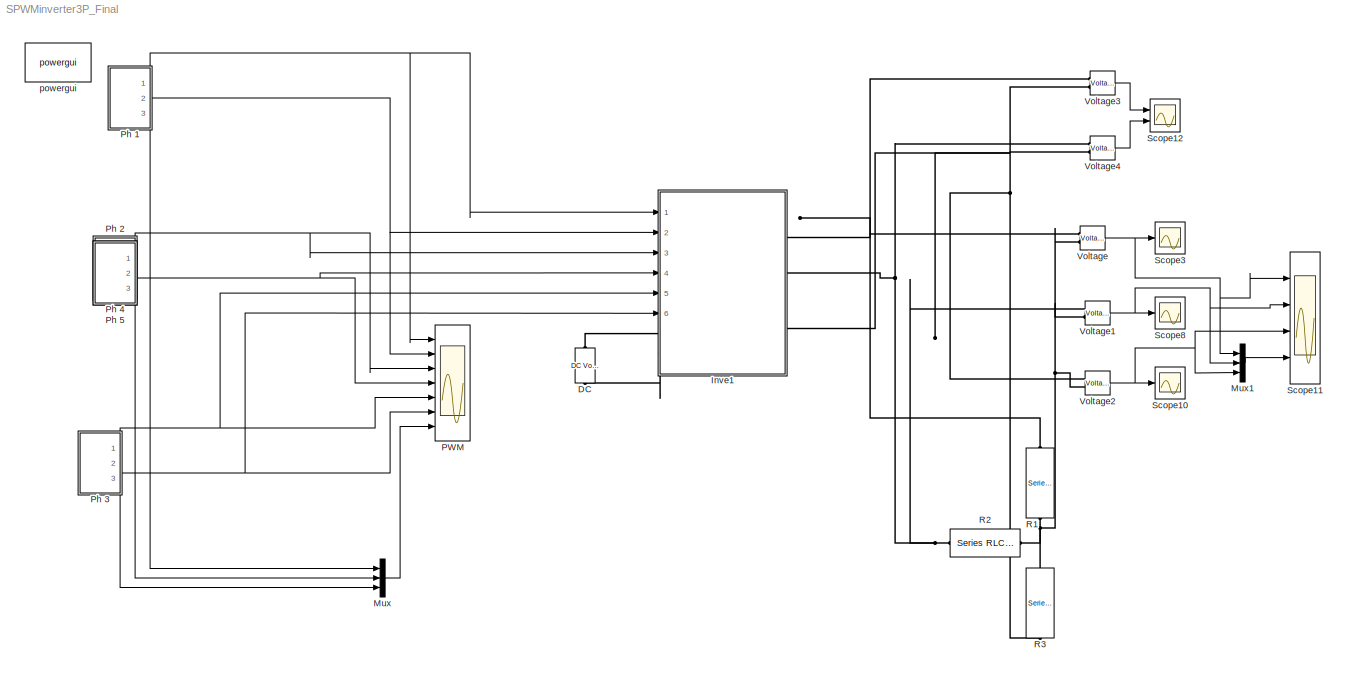
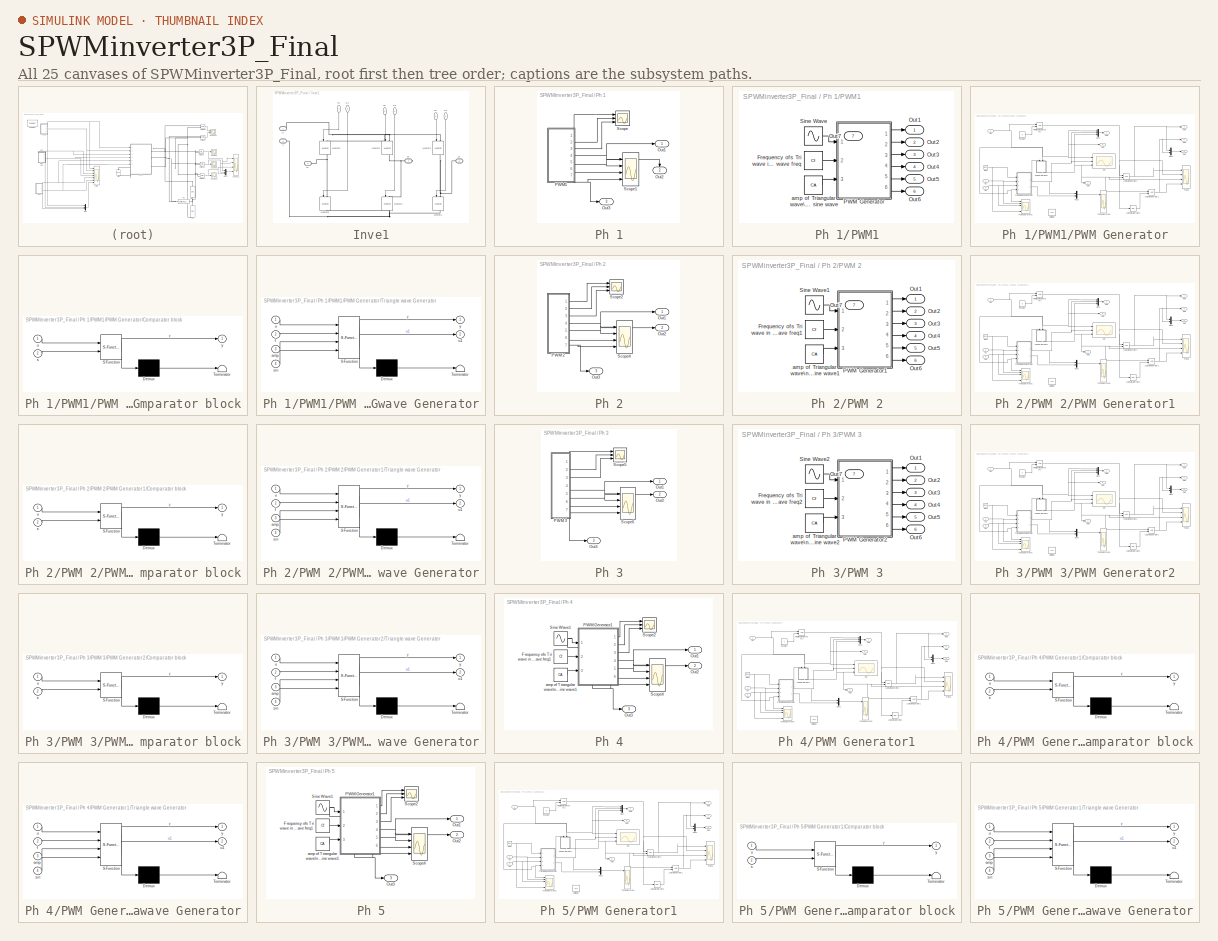
[diagram: thumbnail index - all 25 canvases of the model, root first then tree order]
MODEL SPWMinverter3P_Final
KIND model
BLOCK [Reference] DC  REF=powerlib/Electrical\nSources/DC Voltage Source
  Amplitude = 10
  DialogController = POWERSYS.PowerSysDialog
  FunctionWithSeparateData = off
  Measurements = None
  Ports = [0, 0, 0, 0, 0, 1, 1]
  RTWMemSecDataConstants = Inherit from model
  RTWMemSecDataInternal = Inherit from model
  RTWMemSecDataParameters = Inherit from model
  RTWMemSecFuncExecute = Inherit from model
  RTWMemSecFuncInitTerm = Inherit from model
  SID = 378
  ShowPortLabels = FromPortIcon
  SourceBlock = powerlib/Electrical\nSources/DC Voltage Source
  SourceType = DC Voltage Source
  SystemSampleTime = -1
BLOCK [SubSystem] Inve1
  FunctionWithSeparateData = off
  MaskHideContents = off
  MinAlgLoopOccurrences = off
  Opaque = off
  Ports = [6, 0, 0, 0, 0, 2, 3]
  PropExecContextOutsideSubsystem = off
  RTWSystemCode = Auto
  RequestExecContextInheritance = off
  SID = 379
BLOCK [PMIOPort] Inve1/+1
  Port = 1
  SID = 386
  Side = Left
  Tag = PMCPort
BLOCK [PMIOPort] Inve1/-1
  Port = 2
  SID = 387
  Side = Left
  Tag = PMCPort
BLOCK [Reference] Inve1/Mosfet1  REF=powerlib/Power\nElectronics/Mosfet
  Cs = inf
  DialogController = POWERSYS.PowerSysDialog
  FunctionWithSeparateData = off
  IC = 0
  Lon = 0
  Measurements = on
  Ports = [1, 1, 0, 0, 0, 1, 1]
  RTWMemSecDataConstants = Inherit from model
  RTWMemSecDataInternal = Inherit from model
  RTWMemSecDataParameters = Inherit from model
  RTWMemSecFuncExecute = Inherit from model
  RTWMemSecFuncInitTerm = Inherit from model
  Rd = 0.01
  Ron = 0.1
  Rs = 1e5
  SID = 456
  ShowPortLabels = FromPortIcon
  SourceBlock = powerlib/Power\nElectronics/Mosfet
  SourceType = Mosfet
  SystemSampleTime = -1
  Vfd = 0
BLOCK [Reference] Inve1/Mosfet2  REF=powerlib/Power\nElectronics/Mosfet
  Cs = inf
  DialogController = POWERSYS.PowerSysDialog
  FunctionWithSeparateData = off
  IC = 0
  Lon = 0
  Measurements = on
  Ports = [1, 1, 0, 0, 0, 1, 1]
  RTWMemSecDataConstants = Inherit from model
  RTWMemSecDataInternal = Inherit from model
  RTWMemSecDataParameters = Inherit from model
  RTWMemSecFuncExecute = Inherit from model
  RTWMemSecFuncInitTerm = Inherit from model
  Rd = 0.01
  Ron = 0.1
  Rs = 1e5
  SID = 457
  ShowPortLabels = FromPortIcon
  SourceBlock = powerlib/Power\nElectronics/Mosfet
  SourceType = Mosfet
  SystemSampleTime = -1
  Vfd = 0
BLOCK [Reference] Inve1/Mosfet3  REF=powerlib/Power\nElectronics/Mosfet
  Cs = inf
  DialogController = POWERSYS.PowerSysDialog
  FunctionWithSeparateData = off
  IC = 0
  Lon = 0
  Measurements = on
  Ports = [1, 1, 0, 0, 0, 1, 1]
  RTWMemSecDataConstants = Inherit from model
  RTWMemSecDataInternal = Inherit from model
  RTWMemSecDataParameters = Inherit from model
  RTWMemSecFuncExecute = Inherit from model
  RTWMemSecFuncInitTerm = Inherit from model
  Rd = 0.01
  Ron = 0.1
  Rs = 1e5
  SID = 382
  ShowPortLabels = FromPortIcon
  SourceBlock = powerlib/Power\nElectronics/Mosfet
  SourceType = Mosfet
  SystemSampleTime = -1
  Vfd = 0
BLOCK [Reference] Inve1/Mosfet4  REF=powerlib/Power\nElectronics/Mosfet
  Cs = inf
  DialogController = POWERSYS.PowerSysDialog
  FunctionWithSeparateData = off
  IC = 0
  Lon = 0
  Measurements = on
  Ports = [1, 1, 0, 0, 0, 1, 1]
  RTWMemSecDataConstants = Inherit from model
  RTWMemSecDataInternal = Inherit from model
  RTWMemSecDataParameters = Inherit from model
  RTWMemSecFuncExecute = Inherit from model
  RTWMemSecFuncInitTerm = Inherit from model
  Rd = 0.01
  Ron = 0.1
  Rs = 1e5
  SID = 383
  ShowPortLabels = FromPortIcon
  SourceBlock = powerlib/Power\nElectronics/Mosfet
  SourceType = Mosfet
  SystemSampleTime = -1
  Vfd = 0
BLOCK [Reference] Inve1/Mosfet5  REF=powerlib/Power\nElectronics/Mosfet
  Cs = inf
  DialogController = POWERSYS.PowerSysDialog
  FunctionWithSeparateData = off
  IC = 0
  Lon = 0
  Measurements = on
  Ports = [1, 1, 0, 0, 0, 1, 1]
  RTWMemSecDataConstants = Inherit from model
  RTWMemSecDataInternal = Inherit from model
  RTWMemSecDataParameters = Inherit from model
  RTWMemSecFuncExecute = Inherit from model
  RTWMemSecFuncInitTerm = Inherit from model
  Rd = 0.01
  Ron = 0.1
  Rs = 1e5
  SID = 384
  ShowPortLabels = FromPortIcon
  SourceBlock = powerlib/Power\nElectronics/Mosfet
  SourceType = Mosfet
  SystemSampleTime = -1
  Vfd = 0
BLOCK [Reference] Inve1/Mosfet6  REF=powerlib/Power\nElectronics/Mosfet
  Cs = inf
  DialogController = POWERSYS.PowerSysDialog
  FunctionWithSeparateData = off
  IC = 0
  Lon = 0
  Measurements = on
  Ports = [1, 1, 0, 0, 0, 1, 1]
  RTWMemSecDataConstants = Inherit from model
  RTWMemSecDataInternal = Inherit from model
  RTWMemSecDataParameters = Inherit from model
  RTWMemSecFuncExecute = Inherit from model
  RTWMemSecFuncInitTerm = Inherit from model
  Rd = 0.01
  Ron = 0.1
  Rs = 1e5
  SID = 385
  ShowPortLabels = FromPortIcon
  SourceBlock = powerlib/Power\nElectronics/Mosfet
  SourceType = Mosfet
  SystemSampleTime = -1
  Vfd = 0
BLOCK [Inport] Inve1/N1
  IconDisplay = Port number
  OutDataType = fixdt(1, 16)
  OutScaling = 2^0
  Port = 2
  SID = 381
BLOCK [Inport] Inve1/N2
  IconDisplay = Port number
  OutDataType = fixdt(1, 16)
  OutScaling = 2^0
  Port = 4
  SID = 460
BLOCK [Inport] Inve1/N3
  IconDisplay = Port number
  OutDataType = fixdt(1, 16)
  OutScaling = 2^0
  Port = 6
  SID = 462
BLOCK [Inport] Inve1/P1
  IconDisplay = Port number
  OutDataType = fixdt(1, 16)
  OutScaling = 2^0
  SID = 380
BLOCK [Inport] Inve1/P2
  IconDisplay = Port number
  OutDataType = fixdt(1, 16)
  OutScaling = 2^0
  Port = 3
  SID = 459
BLOCK [Inport] Inve1/P3
  IconDisplay = Port number
  OutDataType = fixdt(1, 16)
  OutScaling = 2^0
  Port = 5
  SID = 461
BLOCK [PMIOPort] Inve1/s1
  Port = 3
  SID = 388
  Side = Right
  Tag = PMCPort
BLOCK [PMIOPort] Inve1/s2
  Port = 4
  SID = 389
  Side = Right
  Tag = PMCPort
BLOCK [PMIOPort] Inve1/s3
  Port = 5
  SID = 458
  Side = Right
  Tag = PMCPort
BLOCK [Mux] Mux
  DisplayOption = bar
  Inputs = 3
  Ports = [3, 1]
  SID = 455
BLOCK [Mux] Mux1
  DisplayOption = bar
  Inputs = 3
  Ports = [3, 1]
  SID = 477
BLOCK [Scope] PWM
  DataFormat = StructureWithTime
  Floating = off
  LimitDataPoints = off
  NumInputPorts = 7
  Ports = [7]
  SID = 454
  SampleTime = 0
  SaveName = ScopeData11
  TimeRange = 0.04
  YMax = 1.5~1.5~1.5~1.5~1.5~1.5~5
  YMin = -0.5~-0.5~-0.5~-0.5~-0.5~-0.5~-5
  ZoomMode = xonly
BLOCK [SubSystem] Ph 1
  FunctionWithSeparateData = off
  MaskCallbackString = |||
  MaskEnableString = on,on,on,on
  MaskHideContents = off
  MaskIconFrame = on
  MaskIconOpaque = on
  MaskIconRotate = none
  MaskIconUnits = autoscale
  MaskPortRotate = default
  MaskPromptString = Sine Amplitude|Carrier Amplitude|Sine Frequency|Carrier Frequency
  MaskStyleString = edit,edit,edit,edit
  MaskToolTipString = on,on,on,on
  MaskTunableValueString = on,on,on,on
  MaskValueString = 3|3|50|5000
  MaskVariables = SA=@1;CA=@2;Sf=@3;Cf=@4;
  MaskVisibilityString = on,on,on,on
  MinAlgLoopOccurrences = off
  Opaque = off
  Ports = [0, 3]
  PropExecContextOutsideSubsystem = off
  RTWSystemCode = Auto
  RequestExecContextInheritance = off
  SID = 491
BLOCK [Outport] Ph 1/Out1
  IconDisplay = Port number
  SID = 492
BLOCK [Outport] Ph 1/Out2
  IconDisplay = Port number
  Port = 2
  SID = 493
BLOCK [Outport] Ph 1/Out3
  IconDisplay = Port number
  Port = 3
  SID = 494
BLOCK [SubSystem] Ph 1/PWM1
  FunctionWithSeparateData = off
  MaskEnableString = on
  MaskHideContents = off
  MaskIconFrame = on
  MaskIconOpaque = on
  MaskIconRotate = none
  MaskIconUnits = autoscale
  MaskPortRotate = default
  MaskPromptString = Degree
  MaskStyleString = edit
  MaskToolTipString = on
  MaskTunableValueString = on
  MaskValueString = 0
  MaskVariables = Deg=@1;
  MaskVisibilityString = on
  MinAlgLoopOccurrences = off
  Opaque = off
  Ports = [0, 7]
  PropExecContextOutsideSubsystem = off
  RTWSystemCode = Auto
  RequestExecContextInheritance = off
  SID = 503
BLOCK [Constant] Ph 1/PWM1/Frequency ofs Tri wave in HZ\nnote:It should < 2 times the sine wave freq
  OutDataType = fixdt(1, 16)
  OutScaling = 2^0
  SID = 25
  Value = Cf
BLOCK [Outport] Ph 1/PWM1/Out1
  IconDisplay = Port number
  SID = 504
BLOCK [Outport] Ph 1/PWM1/Out2
  IconDisplay = Port number
  Port = 2
  SID = 505
BLOCK [Outport] Ph 1/PWM1/Out3
  IconDisplay = Port number
  Port = 3
  SID = 506
BLOCK [Outport] Ph 1/PWM1/Out4
  IconDisplay = Port number
  Port = 4
  SID = 507
BLOCK [Outport] Ph 1/PWM1/Out5
  IconDisplay = Port number
  Port = 5
  SID = 508
BLOCK [Outport] Ph 1/PWM1/Out6
  IconDisplay = Port number
  Port = 6
  SID = 509
BLOCK [Outport] Ph 1/PWM1/Out7
  IconDisplay = Port number
  Port = 7
  SID = 510
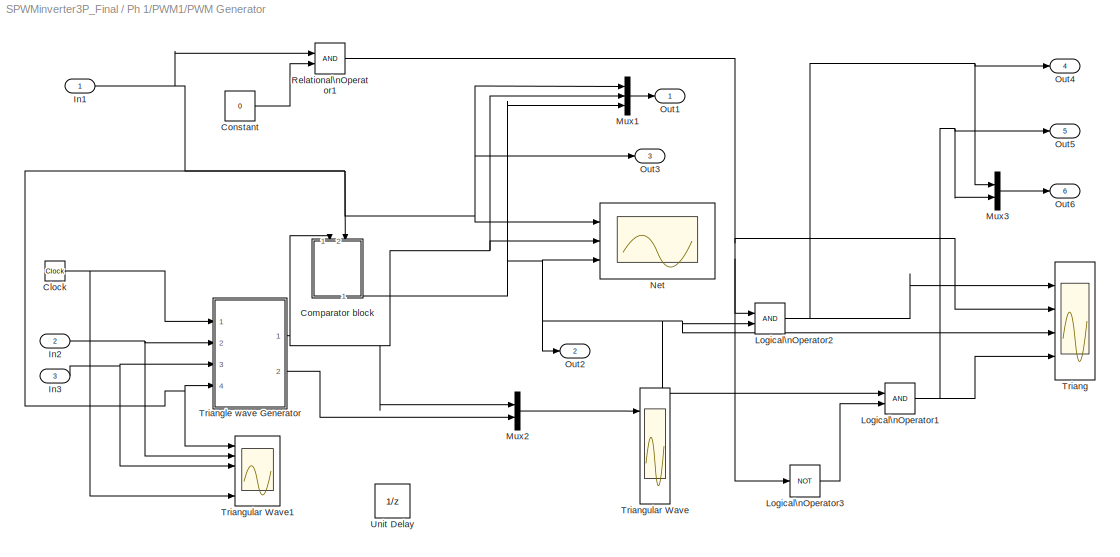
BLOCK [SubSystem] Ph 1/PWM1/PWM Generator
  FunctionWithSeparateData = off
  MaskHideContents = off
  MinAlgLoopOccurrences = off
  Opaque = off
  Ports = [3, 6]
  PropExecContextOutsideSubsystem = off
  RTWSystemCode = Auto
  RequestExecContextInheritance = off
  SID = 27
BLOCK [Clock] Ph 1/PWM1/PWM Generator/Clock
  Decimation = 10
  SID = 31
BLOCK [SubSystem] Ph 1/PWM1/PWM Generator/Comparator block
  FunctionWithSeparateData = off
  MaskDescription = Embedded MATLAB block
  MaskDisplay = disp('fcn');
  MaskHideContents = off
  MaskIconFrame = on
  MaskIconOpaque = off
  MaskIconRotate = none
  MaskIconUnits = autoscale
  MaskPortRotate = default
  MaskSelfModifiable = on
  MaskType = Stateflow
  MinAlgLoopOccurrences = off
  Opaque = off
  PermitHierarchicalResolution = ExplicitOnly
  Ports = [2, 1]
  PropExecContextOutsideSubsystem = off
  RTWSystemCode = Auto
  RequestExecContextInheritance = off
  SID = 32
  TreatAsAtomicUnit = on
BLOCK [Demux] Ph 1/PWM1/PWM Generator/Comparator block/ Demux 
  Outputs = 1
  Ports = [1, 1]
  SID = 12
BLOCK [S-Function] Ph 1/PWM1/PWM Generator/Comparator block/ SFunction 
  EnableBusSupport = on
  FunctionName = sf_sfun
  PortCounts = [2 2]
  Ports = [2, 2]
  SID = 11
  Tag = Stateflow S-Function SPWMinverter3P_Final 1
BLOCK [Terminator] Ph 1/PWM1/PWM Generator/Comparator block/ Terminator 
  SID = 14
BLOCK [Inport] Ph 1/PWM1/PWM Generator/Comparator block/s
  IconDisplay = Port number
  Port = 2
  SID = 10
BLOCK [Inport] Ph 1/PWM1/PWM Generator/Comparator block/u
  IconDisplay = Port number
  OutDataType = sfix(16)
  OutScaling = 2^0
  SID = 1
BLOCK [Outport] Ph 1/PWM1/PWM Generator/Comparator block/y
  IconDisplay = Port number
  OutDataType = sfix(16)
  OutScaling = 2^0
  SID = 5
BLOCK [Constant] Ph 1/PWM1/PWM Generator/Constant
  OutDataType = fixdt(1, 16)
  OutScaling = 2^0
  SID = 339
  Value = 0
BLOCK [Inport] Ph 1/PWM1/PWM Generator/In1
  IconDisplay = Port number
  SID = 358
BLOCK [Inport] Ph 1/PWM1/PWM Generator/In2
  IconDisplay = Port number
  Port = 2
  SID = 29
BLOCK [Inport] Ph 1/PWM1/PWM Generator/In3
  IconDisplay = Port number
  Port = 3
  SID = 30
BLOCK [Logic] Ph 1/PWM1/PWM Generator/Logical\nOperator1
  AllPortsSameDT = off
  LogicDataType = fixdt(0, 8)
  OutDataTypeMode = boolean
  OutDataTypeStr = boolean
  Ports = [2, 1]
  SID = 341
BLOCK [Logic] Ph 1/PWM1/PWM Generator/Logical\nOperator2
  AllPortsSameDT = off
  LogicDataType = fixdt(0, 8)
  OutDataTypeMode = boolean
  OutDataTypeStr = boolean
  Ports = [2, 1]
  SID = 337
BLOCK [Logic] Ph 1/PWM1/PWM Generator/Logical\nOperator3
  AllPortsSameDT = off
  LogicDataType = fixdt(0, 8)
  Operator = NOT
  OutDataTypeMode = boolean
  OutDataTypeStr = boolean
  Ports = [1, 1]
  SID = 338
BLOCK [Mux] Ph 1/PWM1/PWM Generator/Mux1
  DisplayOption = bar
  Inputs = 3
  Ports = [3, 1]
  SID = 33
BLOCK [Mux] Ph 1/PWM1/PWM Generator/Mux2
  DisplayOption = bar
  Inputs = 2
  Ports = [2, 1]
  SID = 34
BLOCK [Mux] Ph 1/PWM1/PWM Generator/Mux3
  DisplayOption = bar
  Inputs = 2
  Ports = [2, 1]
  SID = 342
BLOCK [Scope] Ph 1/PWM1/PWM Generator/Net
  DataFormat = StructureWithTime
  Floating = off
  LimitDataPoints = off
  NumInputPorts = 3
  Ports = [3]
  SID = 35
  SampleTime = 0
  SaveName = ScopeData1
  TimeRange = 0.04
  YMax = 3~3~5.5
  YMin = -3~-3~-1
  ZoomMode = xonly
BLOCK [Outport] Ph 1/PWM1/PWM Generator/Out1
  IconDisplay = Port number
  SID = 40
BLOCK [Outport] Ph 1/PWM1/PWM Generator/Out2
  IconDisplay = Port number
  Port = 2
  SID = 41
BLOCK [Outport] Ph 1/PWM1/PWM Generator/Out3
  IconDisplay = Port number
  Port = 3
  SID = 42
BLOCK [Outport] Ph 1/PWM1/PWM Generator/Out4
  IconDisplay = Port number
  Port = 4
  SID = 343
BLOCK [Outport] Ph 1/PWM1/PWM Generator/Out5
  IconDisplay = Port number
  Port = 5
  SID = 344
BLOCK [Outport] Ph 1/PWM1/PWM Generator/Out6
  IconDisplay = Port number
  Port = 6
  SID = 345
BLOCK [RelationalOperator] Ph 1/PWM1/PWM Generator/Relational\nOperator1
  LogicDataType = fixdt(1,16)
  Ports = [2, 1]
  SID = 340
BLOCK [Scope] Ph 1/PWM1/PWM Generator/Triang
  DataFormat = StructureWithTime
  Floating = off
  LimitDataPoints = off
  NumInputPorts = 4
  Ports = [4]
  SID = 330
  SampleTime = 0
  SaveName = ScopeData6
  YMax = 2~3~6~2
  YMin = -1~0~-1~-1
  ZoomMode = xonly
BLOCK [SubSystem] Ph 1/PWM1/PWM Generator/Triangle wave Generator
  FunctionWithSeparateData = off
  MaskDescription = Embedded MATLAB block
  MaskDisplay = disp('fcn');
  MaskHideContents = off
  MaskIconFrame = on
  MaskIconOpaque = off
  MaskIconRotate = none
  MaskIconUnits = autoscale
  MaskPortRotate = default
  MaskSelfModifiable = on
  MaskType = Stateflow
  MinAlgLoopOccurrences = off
  Opaque = off
  PermitHierarchicalResolution = ExplicitOnly
  Ports = [4, 2]
  PropExecContextOutsideSubsystem = off
  RTWSystemCode = Auto
  RequestExecContextInheritance = off
  SID = 36
  TreatAsAtomicUnit = on
BLOCK [Demux] Ph 1/PWM1/PWM Generator/Triangle wave Generator/ Demux 
  Outputs = 1
  Ports = [1, 1]
  SID = 15
BLOCK [S-Function] Ph 1/PWM1/PWM Generator/Triangle wave Generator/ SFunction 
  EnableBusSupport = on
  FunctionName = sf_sfun
  PortCounts = [4 3]
  Ports = [4, 3]
  SID = 14
  Tag = Stateflow S-Function SPWMinverter3P_Final 2
BLOCK [Terminator] Ph 1/PWM1/PWM Generator/Triangle wave Generator/ Terminator 
  SID = 17
BLOCK [Inport] Ph 1/PWM1/PWM Generator/Triangle wave Generator/amp
  IconDisplay = Port number
  Port = 3
  SID = 11
BLOCK [Inport] Ph 1/PWM1/PWM Generator/Triangle wave Generator/f
  IconDisplay = Port number
  Port = 2
  SID = 10
BLOCK [Inport] Ph 1/PWM1/PWM Generator/Triangle wave Generator/sin
  IconDisplay = Port number
  Port = 4
  SID = 12
BLOCK [Inport] Ph 1/PWM1/PWM Generator/Triangle wave Generator/u
  IconDisplay = Port number
  OutDataType = sfix(16)
  OutScaling = 2^0
  SID = 1
BLOCK [Outport] Ph 1/PWM1/PWM Generator/Triangle wave Generator/u1
  IconDisplay = Port number
  Port = 2
  SID = 13
BLOCK [Outport] Ph 1/PWM1/PWM Generator/Triangle wave Generator/y
  IconDisplay = Port number
  OutDataType = sfix(16)
  OutScaling = 2^0
  SID = 5
BLOCK [Scope] Ph 1/PWM1/PWM Generator/Triangular Wave
  DataFormat = StructureWithTime
  Floating = off
  LimitDataPoints = off
  NumInputPorts = 4
  Ports = [4]
  SID = 37
  SampleTime = 0
  YMax = 3~3~0.2~1
  YMin = -3~-3~0~-1
  ZoomMode = xonly
BLOCK [Scope] Ph 1/PWM1/PWM Generator/Triangular Wave1
  DataFormat = StructureWithTime
  Floating = off
  LimitDataPoints = off
  NumInputPorts = 6
  Ports = [6]
  SID = 38
  SampleTime = 0
  SaveName = ScopeData4
  YMax = 5~5~4~1~5~5
  YMin = -5~-5~-5~-5~-5~-5
  ZoomMode = xonly
BLOCK [UnitDelay] Ph 1/PWM1/PWM Generator/Unit Delay
  SID = 39
  SampleTime = .01/10000
BLOCK [Sin] Ph 1/PWM1/Sine Wave
  Amplitude = SA
  Bias = 0
  Frequency = 2*pi*Sf
  Offset = 0
  Phase = Deg
  Ports = [0, 1]
  SID = 359
  SampleTime = 0
  Samples = 10
BLOCK [Constant] Ph 1/PWM1/amp of Triangular wave\nNote:preferably the value of amp f sine wave
  OutDataType = fixdt(1, 16)
  OutScaling = 2^0
  SID = 43
  Value = CA
BLOCK [Scope] Ph 1/Scope
  DataFormat = StructureWithTime
  Floating = off
  LimitDataPoints = off
  NumInputPorts = 3
  Ports = [3]
  SID = 315
  SampleTime = 0
  SaveName = ScopeData2
  TimeRange = 0.04
  YMax = 6~6~6
  YMin = -5~-5~-6
BLOCK [Scope] Ph 1/Scope1
  DataFormat = StructureWithTime
  Floating = off
  LimitDataPoints = off
  NumInputPorts = 4
  Ports = [4]
  SID = 316
  SampleTime = 0
  SaveName = ScopeData3
  TimeRange = 0.04
  YMax = 2~2~1.5~5
  YMin = -0.5~-0.5~-0.5~-5
  ZoomMode = xonly
BLOCK [SubSystem] Ph 2
  FunctionWithSeparateData = off
  MaskCallbackString = |||
  MaskEnableString = on,on,on,on
  MaskHideContents = off
  MaskIconFrame = on
  MaskIconOpaque = on
  MaskIconRotate = none
  MaskIconUnits = autoscale
  MaskPortRotate = default
  MaskPromptString = Sine Amplitude|Carrier Amplitude|Sine Frequency|Carrier Frequency
  MaskStyleString = edit,edit,edit,edit
  MaskToolTipString = on,on,on,on
  MaskTunableValueString = on,on,on,on
  MaskValueString = 3|3|50|5000
  MaskVariables = SA=@1;CA=@2;Sf=@3;Cf=@4;
  MaskVisibilityString = on,on,on,on
  MinAlgLoopOccurrences = off
  Opaque = off
  Ports = [0, 3]
  PropExecContextOutsideSubsystem = off
  RTWSystemCode = Auto
  RequestExecContextInheritance = off
  SID = 495
BLOCK [Outport] Ph 2/Out1
  IconDisplay = Port number
  SID = 496
BLOCK [Outport] Ph 2/Out2
  IconDisplay = Port number
  Port = 2
  SID = 497
BLOCK [Outport] Ph 2/Out3
  IconDisplay = Port number
  Port = 3
  SID = 498
BLOCK [SubSystem] Ph 2/PWM 2
  FunctionWithSeparateData = off
  MaskEnableString = on
  MaskHideContents = off
  MaskIconFrame = on
  MaskIconOpaque = on
  MaskIconRotate = none
  MaskIconUnits = autoscale
  MaskPortRotate = default
  MaskPromptString = Degree
  MaskStyleString = edit
  MaskToolTipString = on
  MaskTunableValueString = on
  MaskValueString = 120
  MaskVariables = Deg=@1;
  MaskVisibilityString = on
  MinAlgLoopOccurrences = off
  Opaque = off
  Ports = [0, 7]
  PropExecContextOutsideSubsystem = off
  RTWSystemCode = Auto
  RequestExecContextInheritance = off
  SID = 581
BLOCK [Constant] Ph 2/PWM 2/Frequency ofs Tri wave in HZ\nnote:It should < 2 times the sine wave freq1
  OutDataType = fixdt(1, 16)
  OutScaling = 2^0
  SID = 392
  Value = Cf
BLOCK [Outport] Ph 2/PWM 2/Out1
  IconDisplay = Port number
  SID = 582
BLOCK [Outport] Ph 2/PWM 2/Out2
  IconDisplay = Port number
  Port = 2
  SID = 583
BLOCK [Outport] Ph 2/PWM 2/Out3
  IconDisplay = Port number
  Port = 3
  SID = 584
BLOCK [Outport] Ph 2/PWM 2/Out4
  IconDisplay = Port number
  Port = 4
  SID = 585
BLOCK [Outport] Ph 2/PWM 2/Out5
  IconDisplay = Port number
  Port = 5
  SID = 586
BLOCK [Outport] Ph 2/PWM 2/Out6
  IconDisplay = Port number
  Port = 6
  SID = 587
BLOCK [Outport] Ph 2/PWM 2/Out7
  IconDisplay = Port number
  Port = 7
  SID = 588
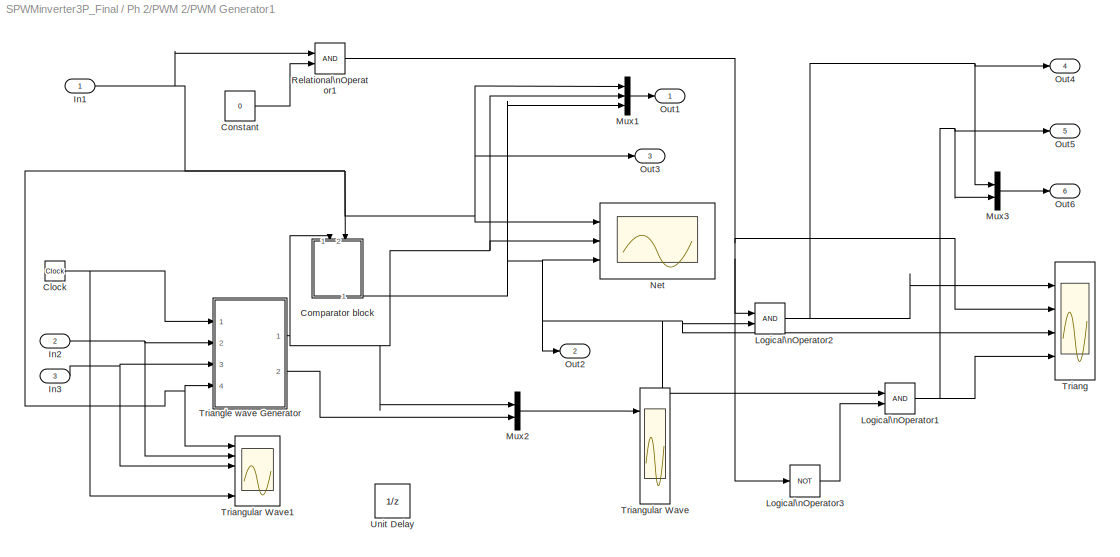
BLOCK [SubSystem] Ph 2/PWM 2/PWM Generator1
  FunctionWithSeparateData = off
  MaskHideContents = off
  MinAlgLoopOccurrences = off
  Opaque = off
  Ports = [3, 6]
  PropExecContextOutsideSubsystem = off
  RTWSystemCode = Auto
  RequestExecContextInheritance = off
  SID = 393
BLOCK [Clock] Ph 2/PWM 2/PWM Generator1/Clock
  Decimation = 10
  SID = 397
BLOCK [SubSystem] Ph 2/PWM 2/PWM Generator1/Comparator block
  FunctionWithSeparateData = off
  MaskDescription = Embedded MATLAB block
  MaskDisplay = disp('fcn');
  MaskHideContents = off
  MaskIconFrame = on
  MaskIconOpaque = off
  MaskIconRotate = none
  MaskIconUnits = autoscale
  MaskPortRotate = default
  MaskSelfModifiable = on
  MaskType = Stateflow
  MinAlgLoopOccurrences = off
  Opaque = off
  PermitHierarchicalResolution = ExplicitOnly
  Ports = [2, 1]
  PropExecContextOutsideSubsystem = off
  RTWSystemCode = Auto
  RequestExecContextInheritance = off
  SID = 398
  TreatAsAtomicUnit = on
BLOCK [Demux] Ph 2/PWM 2/PWM Generator1/Comparator block/ Demux 
  Outputs = 1
  Ports = [1, 1]
  SID = 12
BLOCK [S-Function] Ph 2/PWM 2/PWM Generator1/Comparator block/ SFunction 
  EnableBusSupport = on
  FunctionName = sf_sfun
  PortCounts = [2 2]
  Ports = [2, 2]
  SID = 11
  Tag = Stateflow S-Function SPWMinverter3P_Final 3
BLOCK [Terminator] Ph 2/PWM 2/PWM Generator1/Comparator block/ Terminator 
  SID = 14
BLOCK [Inport] Ph 2/PWM 2/PWM Generator1/Comparator block/s
  IconDisplay = Port number
  Port = 2
  SID = 10
BLOCK [Inport] Ph 2/PWM 2/PWM Generator1/Comparator block/u
  IconDisplay = Port number
  OutDataType = sfix(16)
  OutScaling = 2^0
  SID = 1
BLOCK [Outport] Ph 2/PWM 2/PWM Generator1/Comparator block/y
  IconDisplay = Port number
  OutDataType = sfix(16)
  OutScaling = 2^0
  SID = 5
BLOCK [Constant] Ph 2/PWM 2/PWM Generator1/Constant
  OutDataType = fixdt(1, 16)
  OutScaling = 2^0
  SID = 399
  Value = 0
BLOCK [Inport] Ph 2/PWM 2/PWM Generator1/In1
  IconDisplay = Port number
  SID = 394
BLOCK [Inport] Ph 2/PWM 2/PWM Generator1/In2
  IconDisplay = Port number
  Port = 2
  SID = 395
BLOCK [Inport] Ph 2/PWM 2/PWM Generator1/In3
  IconDisplay = Port number
  Port = 3
  SID = 396
BLOCK [Logic] Ph 2/PWM 2/PWM Generator1/Logical\nOperator1
  AllPortsSameDT = off
  LogicDataType = fixdt(0, 8)
  OutDataTypeMode = boolean
  OutDataTypeStr = boolean
  Ports = [2, 1]
  SID = 400
BLOCK [Logic] Ph 2/PWM 2/PWM Generator1/Logical\nOperator2
  AllPortsSameDT = off
  LogicDataType = fixdt(0, 8)
  OutDataTypeMode = boolean
  OutDataTypeStr = boolean
  Ports = [2, 1]
  SID = 401
BLOCK [Logic] Ph 2/PWM 2/PWM Generator1/Logical\nOperator3
  AllPortsSameDT = off
  LogicDataType = fixdt(0, 8)
  Operator = NOT
  OutDataTypeMode = boolean
  OutDataTypeStr = boolean
  Ports = [1, 1]
  SID = 402
BLOCK [Mux] Ph 2/PWM 2/PWM Generator1/Mux1
  DisplayOption = bar
  Inputs = 3
  Ports = [3, 1]
  SID = 403
BLOCK [Mux] Ph 2/PWM 2/PWM Generator1/Mux2
  DisplayOption = bar
  Inputs = 2
  Ports = [2, 1]
  SID = 404
BLOCK [Mux] Ph 2/PWM 2/PWM Generator1/Mux3
  DisplayOption = bar
  Inputs = 2
  Ports = [2, 1]
  SID = 405
BLOCK [Scope] Ph 2/PWM 2/PWM Generator1/Net
  DataFormat = StructureWithTime
  Floating = off
  LimitDataPoints = off
  NumInputPorts = 3
  Ports = [3]
  SID = 406
  SampleTime = 0
  SaveName = ScopeData1
  TimeRange = 0.08
  YMax = 2.3~5~5
  YMin = 1.5~-5~-5
  ZoomMode = xonly
BLOCK [Outport] Ph 2/PWM 2/PWM Generator1/Out1
  IconDisplay = Port number
  SID = 413
BLOCK [Outport] Ph 2/PWM 2/PWM Generator1/Out2
  IconDisplay = Port number
  Port = 2
  SID = 414
BLOCK [Outport] Ph 2/PWM 2/PWM Generator1/Out3
  IconDisplay = Port number
  Port = 3
  SID = 415
BLOCK [Outport] Ph 2/PWM 2/PWM Generator1/Out4
  IconDisplay = Port number
  Port = 4
  SID = 416
BLOCK [Outport] Ph 2/PWM 2/PWM Generator1/Out5
  IconDisplay = Port number
  Port = 5
  SID = 417
BLOCK [Outport] Ph 2/PWM 2/PWM Generator1/Out6
  IconDisplay = Port number
  Port = 6
  SID = 418
BLOCK [RelationalOperator] Ph 2/PWM 2/PWM Generator1/Relational\nOperator1
  LogicDataType = fixdt(1,16)
  Ports = [2, 1]
  SID = 407
BLOCK [Scope] Ph 2/PWM 2/PWM Generator1/Triang
  DataFormat = StructureWithTime
  Floating = off
  LimitDataPoints = off
  NumInputPorts = 4
  Ports = [4]
  SID = 408
  SampleTime = 0
  SaveName = ScopeData6
  YMax = 2~3~6~2
  YMin = -1~0~-1~-1
  ZoomMode = xonly
BLOCK [SubSystem] Ph 2/PWM 2/PWM Generator1/Triangle wave Generator
  FunctionWithSeparateData = off
  MaskDescription = Embedded MATLAB block
  MaskDisplay = disp('fcn');
  MaskHideContents = off
  MaskIconFrame = on
  MaskIconOpaque = off
  MaskIconRotate = none
  MaskIconUnits = autoscale
  MaskPortRotate = default
  MaskSelfModifiable = on
  MaskType = Stateflow
  MinAlgLoopOccurrences = off
  Opaque = off
  PermitHierarchicalResolution = ExplicitOnly
  Ports = [4, 2]
  PropExecContextOutsideSubsystem = off
  RTWSystemCode = Auto
  RequestExecContextInheritance = off
  SID = 409
  TreatAsAtomicUnit = on
BLOCK [Demux] Ph 2/PWM 2/PWM Generator1/Triangle wave Generator/ Demux 
  Outputs = 1
  Ports = [1, 1]
  SID = 15
BLOCK [S-Function] Ph 2/PWM 2/PWM Generator1/Triangle wave Generator/ SFunction 
  EnableBusSupport = on
  FunctionName = sf_sfun
  PortCounts = [4 3]
  Ports = [4, 3]
  SID = 14
  Tag = Stateflow S-Function SPWMinverter3P_Final 4
BLOCK [Terminator] Ph 2/PWM 2/PWM Generator1/Triangle wave Generator/ Terminator 
  SID = 17
BLOCK [Inport] Ph 2/PWM 2/PWM Generator1/Triangle wave Generator/amp
  IconDisplay = Port number
  Port = 3
  SID = 11
BLOCK [Inport] Ph 2/PWM 2/PWM Generator1/Triangle wave Generator/f
  IconDisplay = Port number
  Port = 2
  SID = 10
BLOCK [Inport] Ph 2/PWM 2/PWM Generator1/Triangle wave Generator/sin
  IconDisplay = Port number
  Port = 4
  SID = 12
BLOCK [Inport] Ph 2/PWM 2/PWM Generator1/Triangle wave Generator/u
  IconDisplay = Port number
  OutDataType = sfix(16)
  OutScaling = 2^0
  SID = 1
BLOCK [Outport] Ph 2/PWM 2/PWM Generator1/Triangle wave Generator/u1
  IconDisplay = Port number
  Port = 2
  SID = 13
BLOCK [Outport] Ph 2/PWM 2/PWM Generator1/Triangle wave Generator/y
  IconDisplay = Port number
  OutDataType = sfix(16)
  OutScaling = 2^0
  SID = 5
BLOCK [Scope] Ph 2/PWM 2/PWM Generator1/Triangular Wave
  DataFormat = StructureWithTime
  Floating = off
  LimitDataPoints = off
  NumInputPorts = 4
  Ports = [4]
  SID = 410
  SampleTime = 0
  YMax = 3~3~0.2~1
  YMin = -3~-3~0~-1
  ZoomMode = xonly
BLOCK [Scope] Ph 2/PWM 2/PWM Generator1/Triangular Wave1
  DataFormat = StructureWithTime
  Floating = off
  LimitDataPoints = off
  NumInputPorts = 6
  Ports = [6]
  SID = 411
  SampleTime = 0
  SaveName = ScopeData4
  YMax = 5~5~4~1~5~5
  YMin = -5~-5~-5~-5~-5~-5
  ZoomMode = xonly
BLOCK [UnitDelay] Ph 2/PWM 2/PWM Generator1/Unit Delay
  SID = 412
  SampleTime = .01/10000
BLOCK [Sin] Ph 2/PWM 2/Sine Wave1
  Amplitude = SA
  Bias = 0
  Frequency = 2*pi*Sf
  Offset = 0
  Phase = Deg*(pi/180)
  Ports = [0, 1]
  SID = 421
  SampleTime = 0
  Samples = 10
BLOCK [Constant] Ph 2/PWM 2/amp of Triangular wave\nNote:preferably the value of amp f sine wave1
  OutDataType = fixdt(1, 16)
  OutScaling = 2^0
  SID = 422
  Value = CA
BLOCK [Scope] Ph 2/Scope2
  DataFormat = StructureWithTime
  Floating = off
  LimitDataPoints = off
  NumInputPorts = 3
  Ports = [3]
  SID = 419
  SampleTime = 0
  SaveName = ScopeData7
  TimeRange = 0.04
  YMax = 6~6~6
  YMin = -5~-5~-6
BLOCK [Scope] Ph 2/Scope4
  DataFormat = StructureWithTime
  Floating = off
  LimitDataPoints = off
  NumInputPorts = 4
  Ports = [4]
  SID = 420
  SampleTime = 0
  SaveName = ScopeData8
  TimeRange = 0.04
  YMax = 2~2~1.5~5
  YMin = -0.5~-0.5~-0.5~-5
  ZoomMode = xonly
BLOCK [SubSystem] Ph 3
  FunctionWithSeparateData = off
  MaskCallbackString = |||
  MaskEnableString = on,on,on,on
  MaskHideContents = off
  MaskIconFrame = on
  MaskIconOpaque = on
  MaskIconRotate = none
  MaskIconUnits = autoscale
  MaskPortRotate = default
  MaskPromptString = Sine Amplitude|Carrier Amplitude|Sine Frequency|Carrier Frequency
  MaskStyleString = edit,edit,edit,edit
  MaskToolTipString = on,on,on,on
  MaskTunableValueString = on,on,on,on
  MaskValueString = 3|3|50|5000
  MaskVariables = SA=@1;CA=@2;Sf=@3;Cf=@4;
  MaskVisibilityString = on,on,on,on
  MinAlgLoopOccurrences = off
  Opaque = off
  Ports = [0, 3]
  PropExecContextOutsideSubsystem = off
  RTWSystemCode = Auto
  RequestExecContextInheritance = off
  SID = 499
BLOCK [Outport] Ph 3/Out1
  IconDisplay = Port number
  SID = 500
BLOCK [Outport] Ph 3/Out2
  IconDisplay = Port number
  Port = 2
  SID = 501
BLOCK [Outport] Ph 3/Out3
  IconDisplay = Port number
  Port = 3
  SID = 502
BLOCK [SubSystem] Ph 3/PWM 3
  FunctionWithSeparateData = off
  MaskEnableString = on
  MaskHideContents = off
  MaskIconFrame = on
  MaskIconOpaque = on
  MaskIconRotate = none
  MaskIconUnits = autoscale
  MaskPortRotate = default
  MaskPromptString = Degree
  MaskStyleString = edit
  MaskToolTipString = on
  MaskTunableValueString = on
  MaskValueString = 240
  MaskVariables = Deg=@1;
  MaskVisibilityString = on
  MinAlgLoopOccurrences = off
  Opaque = off
  Ports = [0, 7]
  PropExecContextOutsideSubsystem = off
  RTWSystemCode = Auto
  RequestExecContextInheritance = off
  SID = 589
BLOCK [Constant] Ph 3/PWM 3/Frequency ofs Tri wave in HZ\nnote:It should < 2 times the sine wave freq2
  OutDataType = fixdt(1, 16)
  OutScaling = 2^0
  SID = 423
  Value = Cf
BLOCK [Outport] Ph 3/PWM 3/Out1
  IconDisplay = Port number
  SID = 590
BLOCK [Outport] Ph 3/PWM 3/Out2
  IconDisplay = Port number
  Port = 2
  SID = 591
BLOCK [Outport] Ph 3/PWM 3/Out3
  IconDisplay = Port number
  Port = 3
  SID = 592
BLOCK [Outport] Ph 3/PWM 3/Out4
  IconDisplay = Port number
  Port = 4
  SID = 593
BLOCK [Outport] Ph 3/PWM 3/Out5
  IconDisplay = Port number
  Port = 5
  SID = 594
BLOCK [Outport] Ph 3/PWM 3/Out6
  IconDisplay = Port number
  Port = 6
  SID = 595
BLOCK [Outport] Ph 3/PWM 3/Out7
  IconDisplay = Port number
  Port = 7
  SID = 596
BLOCK [SubSystem] Ph 3/PWM 3/PWM Generator2
  FunctionWithSeparateData = off
  MaskHideContents = off
  MinAlgLoopOccurrences = off
  Opaque = off
  Ports = [3, 6]
  PropExecContextOutsideSubsystem = off
  RTWSystemCode = Auto
  RequestExecContextInheritance = off
  SID = 424
BLOCK [Clock] Ph 3/PWM 3/PWM Generator2/Clock
  Decimation = 10
  SID = 428
BLOCK [SubSystem] Ph 3/PWM 3/PWM Generator2/Comparator block
  FunctionWithSeparateData = off
  MaskDescription = Embedded MATLAB block
  MaskDisplay = disp('fcn');
  MaskHideContents = off
  MaskIconFrame = on
  MaskIconOpaque = off
  MaskIconRotate = none
  MaskIconUnits = autoscale
  MaskPortRotate = default
  MaskSelfModifiable = on
  MaskType = Stateflow
  MinAlgLoopOccurrences = off
  Opaque = off
  PermitHierarchicalResolution = ExplicitOnly
  Ports = [2, 1]
  PropExecContextOutsideSubsystem = off
  RTWSystemCode = Auto
  RequestExecContextInheritance = off
  SID = 429
  TreatAsAtomicUnit = on
BLOCK [Demux] Ph 3/PWM 3/PWM Generator2/Comparator block/ Demux 
  Outputs = 1
  Ports = [1, 1]
  SID = 12
BLOCK [S-Function] Ph 3/PWM 3/PWM Generator2/Comparator block/ SFunction 
  EnableBusSupport = on
  FunctionName = sf_sfun
  PortCounts = [2 2]
  Ports = [2, 2]
  SID = 11
  Tag = Stateflow S-Function SPWMinverter3P_Final 5
BLOCK [Terminator] Ph 3/PWM 3/PWM Generator2/Comparator block/ Terminator 
  SID = 14
BLOCK [Inport] Ph 3/PWM 3/PWM Generator2/Comparator block/s
  IconDisplay = Port number
  Port = 2
  SID = 10
BLOCK [Inport] Ph 3/PWM 3/PWM Generator2/Comparator block/u
  IconDisplay = Port number
  OutDataType = sfix(16)
  OutScaling = 2^0
  SID = 1
BLOCK [Outport] Ph 3/PWM 3/PWM Generator2/Comparator block/y
  IconDisplay = Port number
  OutDataType = sfix(16)
  OutScaling = 2^0
  SID = 5
BLOCK [Constant] Ph 3/PWM 3/PWM Generator2/Constant
  OutDataType = fixdt(1, 16)
  OutScaling = 2^0
  SID = 430
  Value = 0
BLOCK [Inport] Ph 3/PWM 3/PWM Generator2/In1
  IconDisplay = Port number
  SID = 425
BLOCK [Inport] Ph 3/PWM 3/PWM Generator2/In2
  IconDisplay = Port number
  Port = 2
  SID = 426
BLOCK [Inport] Ph 3/PWM 3/PWM Generator2/In3
  IconDisplay = Port number
  Port = 3
  SID = 427
BLOCK [Logic] Ph 3/PWM 3/PWM Generator2/Logical\nOperator1
  AllPortsSameDT = off
  LogicDataType = fixdt(0, 8)
  OutDataTypeMode = boolean
  OutDataTypeStr = boolean
  Ports = [2, 1]
  SID = 431
BLOCK [Logic] Ph 3/PWM 3/PWM Generator2/Logical\nOperator2
  AllPortsSameDT = off
  LogicDataType = fixdt(0, 8)
  OutDataTypeMode = boolean
  OutDataTypeStr = boolean
  Ports = [2, 1]
  SID = 432
BLOCK [Logic] Ph 3/PWM 3/PWM Generator2/Logical\nOperator3
  AllPortsSameDT = off
  LogicDataType = fixdt(0, 8)
  Operator = NOT
  OutDataTypeMode = boolean
  OutDataTypeStr = boolean
  Ports = [1, 1]
  SID = 433
BLOCK [Mux] Ph 3/PWM 3/PWM Generator2/Mux1
  DisplayOption = bar
  Inputs = 3
  Ports = [3, 1]
  SID = 434
BLOCK [Mux] Ph 3/PWM 3/PWM Generator2/Mux2
  DisplayOption = bar
  Inputs = 2
  Ports = [2, 1]
  SID = 435
BLOCK [Mux] Ph 3/PWM 3/PWM Generator2/Mux3
  DisplayOption = bar
  Inputs = 2
  Ports = [2, 1]
  SID = 436
BLOCK [Scope] Ph 3/PWM 3/PWM Generator2/Net
  DataFormat = StructureWithTime
  Floating = off
  LimitDataPoints = off
  NumInputPorts = 3
  Ports = [3]
  SID = 437
  SampleTime = 0
  SaveName = ScopeData1
  TimeRange = 0.08
  YMax = 2.3~5~5
  YMin = 1.5~-5~-5
  ZoomMode = xonly
BLOCK [Outport] Ph 3/PWM 3/PWM Generator2/Out1
  IconDisplay = Port number
  SID = 444
BLOCK [Outport] Ph 3/PWM 3/PWM Generator2/Out2
  IconDisplay = Port number
  Port = 2
  SID = 445
BLOCK [Outport] Ph 3/PWM 3/PWM Generator2/Out3
  IconDisplay = Port number
  Port = 3
  SID = 446
BLOCK [Outport] Ph 3/PWM 3/PWM Generator2/Out4
  IconDisplay = Port number
  Port = 4
  SID = 447
BLOCK [Outport] Ph 3/PWM 3/PWM Generator2/Out5
  IconDisplay = Port number
  Port = 5
  SID = 448
BLOCK [Outport] Ph 3/PWM 3/PWM Generator2/Out6
  IconDisplay = Port number
  Port = 6
  SID = 449
BLOCK [RelationalOperator] Ph 3/PWM 3/PWM Generator2/Relational\nOperator1
  LogicDataType = fixdt(1,16)
  Ports = [2, 1]
  SID = 438
BLOCK [Scope] Ph 3/PWM 3/PWM Generator2/Triang
  DataFormat = StructureWithTime
  Floating = off
  LimitDataPoints = off
  NumInputPorts = 4
  Ports = [4]
  SID = 439
  SampleTime = 0
  SaveName = ScopeData6
  YMax = 2~3~6~2
  YMin = -1~0~-1~-1
  ZoomMode = xonly
BLOCK [SubSystem] Ph 3/PWM 3/PWM Generator2/Triangle wave Generator
  FunctionWithSeparateData = off
  MaskDescription = Embedded MATLAB block
  MaskDisplay = disp('fcn');
  MaskHideContents = off
  MaskIconFrame = on
  MaskIconOpaque = off
  MaskIconRotate = none
  MaskIconUnits = autoscale
  MaskPortRotate = default
  MaskSelfModifiable = on
  MaskType = Stateflow
  MinAlgLoopOccurrences = off
  Opaque = off
  PermitHierarchicalResolution = ExplicitOnly
  Ports = [4, 2]
  PropExecContextOutsideSubsystem = off
  RTWSystemCode = Auto
  RequestExecContextInheritance = off
  SID = 440
  TreatAsAtomicUnit = on
BLOCK [Demux] Ph 3/PWM 3/PWM Generator2/Triangle wave Generator/ Demux 
  Outputs = 1
  Ports = [1, 1]
  SID = 15
BLOCK [S-Function] Ph 3/PWM 3/PWM Generator2/Triangle wave Generator/ SFunction 
  EnableBusSupport = on
  FunctionName = sf_sfun
  PortCounts = [4 3]
  Ports = [4, 3]
  SID = 14
  Tag = Stateflow S-Function SPWMinverter3P_Final 6
BLOCK [Terminator] Ph 3/PWM 3/PWM Generator2/Triangle wave Generator/ Terminator 
  SID = 17
BLOCK [Inport] Ph 3/PWM 3/PWM Generator2/Triangle wave Generator/amp
  IconDisplay = Port number
  Port = 3
  SID = 11
BLOCK [Inport] Ph 3/PWM 3/PWM Generator2/Triangle wave Generator/f
  IconDisplay = Port number
  Port = 2
  SID = 10
BLOCK [Inport] Ph 3/PWM 3/PWM Generator2/Triangle wave Generator/sin
  IconDisplay = Port number
  Port = 4
  SID = 12
BLOCK [Inport] Ph 3/PWM 3/PWM Generator2/Triangle wave Generator/u
  IconDisplay = Port number
  OutDataType = sfix(16)
  OutScaling = 2^0
  SID = 1
BLOCK [Outport] Ph 3/PWM 3/PWM Generator2/Triangle wave Generator/u1
  IconDisplay = Port number
  Port = 2
  SID = 13
BLOCK [Outport] Ph 3/PWM 3/PWM Generator2/Triangle wave Generator/y
  IconDisplay = Port number
  OutDataType = sfix(16)
  OutScaling = 2^0
  SID = 5
BLOCK [Scope] Ph 3/PWM 3/PWM Generator2/Triangular Wave
  DataFormat = StructureWithTime
  Floating = off
  LimitDataPoints = off
  NumInputPorts = 4
  Ports = [4]
  SID = 441
  SampleTime = 0
  YMax = 3~3~0.2~1
  YMin = -3~-3~0~-1
  ZoomMode = xonly
BLOCK [Scope] Ph 3/PWM 3/PWM Generator2/Triangular Wave1
  DataFormat = StructureWithTime
  Floating = off
  LimitDataPoints = off
  NumInputPorts = 6
  Ports = [6]
  SID = 442
  SampleTime = 0
  SaveName = ScopeData4
  YMax = 5~5~4~1~5~5
  YMin = -5~-5~-5~-5~-5~-5
  ZoomMode = xonly
BLOCK [UnitDelay] Ph 3/PWM 3/PWM Generator2/Unit Delay
  SID = 443
  SampleTime = .01/10000
BLOCK [Sin] Ph 3/PWM 3/Sine Wave2
  Amplitude = SA
  Bias = 0
  Frequency = 2*pi*Sf
  Offset = 0
  Phase = Deg*(pi/180)
  Ports = [0, 1]
  SID = 452
  SampleTime = 0
  Samples = 10
BLOCK [Constant] Ph 3/PWM 3/amp of Triangular wave\nNote:preferably the value of amp f sine wave2
  OutDataType = fixdt(1, 16)
  OutScaling = 2^0
  SID = 453
  Value = CA
BLOCK [Scope] Ph 3/Scope5
  DataFormat = StructureWithTime
  Floating = off
  LimitDataPoints = off
  NumInputPorts = 3
  Ports = [3]
  SID = 450
  SampleTime = 0
  SaveName = ScopeData9
  TimeRange = 0.04
  YMax = 6~6~6
  YMin = -5~-5~-6
BLOCK [Scope] Ph 3/Scope6
  DataFormat = StructureWithTime
  Floating = off
  LimitDataPoints = off
  NumInputPorts = 4
  Ports = [4]
  SID = 451
  SampleTime = 0
  SaveName = ScopeData10
  TimeRange = 0.04
  YMax = 2~2~1.5~5
  YMin = -0.5~-0.5~-0.5~-5
  ZoomMode = xonly
BLOCK [SubSystem] Ph 4
  FunctionWithSeparateData = off
  MaskCallbackString = |||
  MaskEnableString = on,on,on,on
  MaskHideContents = off
  MaskIconFrame = on
  MaskIconOpaque = on
  MaskIconRotate = none
  MaskIconUnits = autoscale
  MaskPortRotate = default
  MaskPromptString = Sine Amplitude|Carrier Amplitude|Sine Frequency|Carrier Frequency
  MaskStyleString = edit,edit,edit,edit
  MaskToolTipString = on,on,on,on
  MaskTunableValueString = on,on,on,on
  MaskValueString = 3|3|50|5000
  MaskVariables = SA=@1;CA=@2;Sf=@3;Cf=@4;
  MaskVisibilityString = on,on,on,on
  MinAlgLoopOccurrences = off
  Opaque = off
  Ports = [0, 3]
  PropExecContextOutsideSubsystem = off
  RTWSystemCode = Auto
  RequestExecContextInheritance = off
  SID = 511
BLOCK [Constant] Ph 4/Frequency ofs Tri wave in HZ\nnote:It should < 2 times the sine wave freq1
  OutDataType = fixdt(1, 16)
  OutScaling = 2^0
  SID = 512
  Value = Cf
BLOCK [Outport] Ph 4/Out1
  IconDisplay = Port number
  SID = 543
BLOCK [Outport] Ph 4/Out2
  IconDisplay = Port number
  Port = 2
  SID = 544
BLOCK [Outport] Ph 4/Out3
  IconDisplay = Port number
  Port = 3
  SID = 545
BLOCK [SubSystem] Ph 4/PWM Generator1
  FunctionWithSeparateData = off
  MaskHideContents = off
  MinAlgLoopOccurrences = off
  Opaque = off
  Ports = [3, 6]
  PropExecContextOutsideSubsystem = off
  RTWSystemCode = Auto
  RequestExecContextInheritance = off
  SID = 513
BLOCK [Clock] Ph 4/PWM Generator1/Clock
  Decimation = 10
  SID = 517
BLOCK [SubSystem] Ph 4/PWM Generator1/Comparator block
  FunctionWithSeparateData = off
  MaskDescription = Embedded MATLAB block
  MaskDisplay = disp('fcn');
  MaskHideContents = off
  MaskIconFrame = on
  MaskIconOpaque = off
  MaskIconRotate = none
  MaskIconUnits = autoscale
  MaskPortRotate = default
  MaskSelfModifiable = on
  MaskType = Stateflow
  MinAlgLoopOccurrences = off
  Opaque = off
  PermitHierarchicalResolution = ExplicitOnly
  Ports = [2, 1]
  PropExecContextOutsideSubsystem = off
  RTWSystemCode = Auto
  RequestExecContextInheritance = off
  SID = 518
  TreatAsAtomicUnit = on
BLOCK [Demux] Ph 4/PWM Generator1/Comparator block/ Demux 
  Outputs = 1
  Ports = [1, 1]
  SID = 12
BLOCK [S-Function] Ph 4/PWM Generator1/Comparator block/ SFunction 
  EnableBusSupport = on
  FunctionName = sf_sfun
  PortCounts = [2 2]
  Ports = [2, 2]
  SID = 11
  Tag = Stateflow S-Function SPWMinverter3P_Final 7
BLOCK [Terminator] Ph 4/PWM Generator1/Comparator block/ Terminator 
  SID = 14
BLOCK [Inport] Ph 4/PWM Generator1/Comparator block/s
  IconDisplay = Port number
  Port = 2
  SID = 10
BLOCK [Inport] Ph 4/PWM Generator1/Comparator block/u
  IconDisplay = Port number
  OutDataType = sfix(16)
  OutScaling = 2^0
  SID = 1
BLOCK [Outport] Ph 4/PWM Generator1/Comparator block/y
  IconDisplay = Port number
  OutDataType = sfix(16)
  OutScaling = 2^0
  SID = 5
BLOCK [Constant] Ph 4/PWM Generator1/Constant
  OutDataType = fixdt(1, 16)
  OutScaling = 2^0
  SID = 519
  Value = 0
BLOCK [Inport] Ph 4/PWM Generator1/In1
  IconDisplay = Port number
  SID = 514
BLOCK [Inport] Ph 4/PWM Generator1/In2
  IconDisplay = Port number
  Port = 2
  SID = 515
BLOCK [Inport] Ph 4/PWM Generator1/In3
  IconDisplay = Port number
  Port = 3
  SID = 516
BLOCK [Logic] Ph 4/PWM Generator1/Logical\nOperator1
  AllPortsSameDT = off
  LogicDataType = fixdt(0, 8)
  OutDataTypeMode = boolean
  OutDataTypeStr = boolean
  Ports = [2, 1]
  SID = 520
BLOCK [Logic] Ph 4/PWM Generator1/Logical\nOperator2
  AllPortsSameDT = off
  LogicDataType = fixdt(0, 8)
  OutDataTypeMode = boolean
  OutDataTypeStr = boolean
  Ports = [2, 1]
  SID = 521
BLOCK [Logic] Ph 4/PWM Generator1/Logical\nOperator3
  AllPortsSameDT = off
  LogicDataType = fixdt(0, 8)
  Operator = NOT
  OutDataTypeMode = boolean
  OutDataTypeStr = boolean
  Ports = [1, 1]
  SID = 522
BLOCK [Mux] Ph 4/PWM Generator1/Mux1
  DisplayOption = bar
  Inputs = 3
  Ports = [3, 1]
  SID = 523
BLOCK [Mux] Ph 4/PWM Generator1/Mux2
  DisplayOption = bar
  Inputs = 2
  Ports = [2, 1]
  SID = 524
BLOCK [Mux] Ph 4/PWM Generator1/Mux3
  DisplayOption = bar
  Inputs = 2
  Ports = [2, 1]
  SID = 525
BLOCK [Scope] Ph 4/PWM Generator1/Net
  DataFormat = StructureWithTime
  Floating = off
  LimitDataPoints = off
  NumInputPorts = 3
  Ports = [3]
  SID = 526
  SampleTime = 0
  SaveName = ScopeData1
  TimeRange = 0.08
  YMax = 2.3~5~5
  YMin = 1.5~-5~-5
  ZoomMode = xonly
BLOCK [Outport] Ph 4/PWM Generator1/Out1
  IconDisplay = Port number
  SID = 533
BLOCK [Outport] Ph 4/PWM Generator1/Out2
  IconDisplay = Port number
  Port = 2
  SID = 534
BLOCK [Outport] Ph 4/PWM Generator1/Out3
  IconDisplay = Port number
  Port = 3
  SID = 535
BLOCK [Outport] Ph 4/PWM Generator1/Out4
  IconDisplay = Port number
  Port = 4
  SID = 536
BLOCK [Outport] Ph 4/PWM Generator1/Out5
  IconDisplay = Port number
  Port = 5
  SID = 537
BLOCK [Outport] Ph 4/PWM Generator1/Out6
  IconDisplay = Port number
  Port = 6
  SID = 538
BLOCK [RelationalOperator] Ph 4/PWM Generator1/Relational\nOperator1
  LogicDataType = fixdt(1,16)
  Ports = [2, 1]
  SID = 527
BLOCK [Scope] Ph 4/PWM Generator1/Triang
  DataFormat = StructureWithTime
  Floating = off
  LimitDataPoints = off
  NumInputPorts = 4
  Ports = [4]
  SID = 528
  SampleTime = 0
  SaveName = ScopeData6
  YMax = 2~3~6~2
  YMin = -1~0~-1~-1
  ZoomMode = xonly
BLOCK [SubSystem] Ph 4/PWM Generator1/Triangle wave Generator
  FunctionWithSeparateData = off
  MaskDescription = Embedded MATLAB block
  MaskDisplay = disp('fcn');
  MaskHideContents = off
  MaskIconFrame = on
  MaskIconOpaque = off
  MaskIconRotate = none
  MaskIconUnits = autoscale
  MaskPortRotate = default
  MaskSelfModifiable = on
  MaskType = Stateflow
  MinAlgLoopOccurrences = off
  Opaque = off
  PermitHierarchicalResolution = ExplicitOnly
  Ports = [4, 2]
  PropExecContextOutsideSubsystem = off
  RTWSystemCode = Auto
  RequestExecContextInheritance = off
  SID = 529
  TreatAsAtomicUnit = on
BLOCK [Demux] Ph 4/PWM Generator1/Triangle wave Generator/ Demux 
  Outputs = 1
  Ports = [1, 1]
  SID = 15
BLOCK [S-Function] Ph 4/PWM Generator1/Triangle wave Generator/ SFunction 
  EnableBusSupport = on
  FunctionName = sf_sfun
  PortCounts = [4 3]
  Ports = [4, 3]
  SID = 14
  Tag = Stateflow S-Function SPWMinverter3P_Final 8
BLOCK [Terminator] Ph 4/PWM Generator1/Triangle wave Generator/ Terminator 
  SID = 17
BLOCK [Inport] Ph 4/PWM Generator1/Triangle wave Generator/amp
  IconDisplay = Port number
  Port = 3
  SID = 11
BLOCK [Inport] Ph 4/PWM Generator1/Triangle wave Generator/f
  IconDisplay = Port number
  Port = 2
  SID = 10
BLOCK [Inport] Ph 4/PWM Generator1/Triangle wave Generator/sin
  IconDisplay = Port number
  Port = 4
  SID = 12
BLOCK [Inport] Ph 4/PWM Generator1/Triangle wave Generator/u
  IconDisplay = Port number
  OutDataType = sfix(16)
  OutScaling = 2^0
  SID = 1
BLOCK [Outport] Ph 4/PWM Generator1/Triangle wave Generator/u1
  IconDisplay = Port number
  Port = 2
  SID = 13
BLOCK [Outport] Ph 4/PWM Generator1/Triangle wave Generator/y
  IconDisplay = Port number
  OutDataType = sfix(16)
  OutScaling = 2^0
  SID = 5
BLOCK [Scope] Ph 4/PWM Generator1/Triangular Wave
  DataFormat = StructureWithTime
  Floating = off
  LimitDataPoints = off
  NumInputPorts = 4
  Ports = [4]
  SID = 530
  SampleTime = 0
  YMax = 3~3~0.2~1
  YMin = -3~-3~0~-1
  ZoomMode = xonly
BLOCK [Scope] Ph 4/PWM Generator1/Triangular Wave1
  DataFormat = StructureWithTime
  Floating = off
  LimitDataPoints = off
  NumInputPorts = 6
  Ports = [6]
  SID = 531
  SampleTime = 0
  SaveName = ScopeData4
  YMax = 5~5~4~1~5~5
  YMin = -5~-5~-5~-5~-5~-5
  ZoomMode = xonly
BLOCK [UnitDelay] Ph 4/PWM Generator1/Unit Delay
  SID = 532
  SampleTime = .01/10000
BLOCK [Scope] Ph 4/Scope2
  DataFormat = StructureWithTime
  Floating = off
  LimitDataPoints = off
  NumInputPorts = 3
  Ports = [3]
  SID = 539
  SampleTime = 0
  SaveName = ScopeData7
  TimeRange = 0.04
  YMax = 6~6~6
  YMin = -5~-5~-6
BLOCK [Scope] Ph 4/Scope4
  DataFormat = StructureWithTime
  Floating = off
  LimitDataPoints = off
  NumInputPorts = 4
  Ports = [4]
  SID = 540
  SampleTime = 0
  SaveName = ScopeData8
  TimeRange = 0.04
  YMax = 2~2~1.5~5
  YMin = -0.5~-0.5~-0.5~-5
  ZoomMode = xonly
BLOCK [Sin] Ph 4/Sine Wave1
  Amplitude = SA
  Bias = 0
  Frequency = 2*pi*Sf
  Offset = 0
  Phase = 240*(pi/180)
  Ports = [0, 1]
  SID = 541
  SampleTime = 0
  Samples = 10
BLOCK [Constant] Ph 4/amp of Triangular wave\nNote:preferably the value of amp f sine wave1
  OutDataType = fixdt(1, 16)
  OutScaling = 2^0
  SID = 542
  Value = CA
BLOCK [SubSystem] Ph 5
  FunctionWithSeparateData = off
  MaskCallbackString = |||
  MaskEnableString = on,on,on,on
  MaskHideContents = off
  MaskIconFrame = on
  MaskIconOpaque = on
  MaskIconRotate = none
  MaskIconUnits = autoscale
  MaskPortRotate = default
  MaskPromptString = Sine Amplitude|Carrier Amplitude|Sine Frequency|Carrier Frequency
  MaskStyleString = edit,edit,edit,edit
  MaskToolTipString = on,on,on,on
  MaskTunableValueString = on,on,on,on
  MaskValueString = 3|3|50|5000
  MaskVariables = SA=@1;CA=@2;Sf=@3;Cf=@4;
  MaskVisibilityString = on,on,on,on
  MinAlgLoopOccurrences = off
  Opaque = off
  Ports = [0, 3]
  PropExecContextOutsideSubsystem = off
  RTWSystemCode = Auto
  RequestExecContextInheritance = off
  SID = 546
BLOCK [Constant] Ph 5/Frequency ofs Tri wave in HZ\nnote:It should < 2 times the sine wave freq1
  OutDataType = fixdt(1, 16)
  OutScaling = 2^0
  SID = 547
  Value = Cf
BLOCK [Outport] Ph 5/Out1
  IconDisplay = Port number
  SID = 578
BLOCK [Outport] Ph 5/Out2
  IconDisplay = Port number
  Port = 2
  SID = 579
BLOCK [Outport] Ph 5/Out3
  IconDisplay = Port number
  Port = 3
  SID = 580
BLOCK [SubSystem] Ph 5/PWM Generator1
  FunctionWithSeparateData = off
  MaskHideContents = off
  MinAlgLoopOccurrences = off
  Opaque = off
  Ports = [3, 6]
  PropExecContextOutsideSubsystem = off
  RTWSystemCode = Auto
  RequestExecContextInheritance = off
  SID = 548
BLOCK [Clock] Ph 5/PWM Generator1/Clock
  Decimation = 10
  SID = 552
BLOCK [SubSystem] Ph 5/PWM Generator1/Comparator block
  FunctionWithSeparateData = off
  MaskDescription = Embedded MATLAB block
  MaskDisplay = disp('fcn');
  MaskHideContents = off
  MaskIconFrame = on
  MaskIconOpaque = off
  MaskIconRotate = none
  MaskIconUnits = autoscale
  MaskPortRotate = default
  MaskSelfModifiable = on
  MaskType = Stateflow
  MinAlgLoopOccurrences = off
  Opaque = off
  PermitHierarchicalResolution = ExplicitOnly
  Ports = [2, 1]
  PropExecContextOutsideSubsystem = off
  RTWSystemCode = Auto
  RequestExecContextInheritance = off
  SID = 553
  TreatAsAtomicUnit = on
BLOCK [Demux] Ph 5/PWM Generator1/Comparator block/ Demux 
  Outputs = 1
  Ports = [1, 1]
  SID = 12
BLOCK [S-Function] Ph 5/PWM Generator1/Comparator block/ SFunction 
  EnableBusSupport = on
  FunctionName = sf_sfun
  PortCounts = [2 2]
  Ports = [2, 2]
  SID = 11
  Tag = Stateflow S-Function SPWMinverter3P_Final 9
BLOCK [Terminator] Ph 5/PWM Generator1/Comparator block/ Terminator 
  SID = 14
BLOCK [Inport] Ph 5/PWM Generator1/Comparator block/s
  IconDisplay = Port number
  Port = 2
  SID = 10
BLOCK [Inport] Ph 5/PWM Generator1/Comparator block/u
  IconDisplay = Port number
  OutDataType = sfix(16)
  OutScaling = 2^0
  SID = 1
BLOCK [Outport] Ph 5/PWM Generator1/Comparator block/y
  IconDisplay = Port number
  OutDataType = sfix(16)
  OutScaling = 2^0
  SID = 5
BLOCK [Constant] Ph 5/PWM Generator1/Constant
  OutDataType = fixdt(1, 16)
  OutScaling = 2^0
  SID = 554
  Value = 0
BLOCK [Inport] Ph 5/PWM Generator1/In1
  IconDisplay = Port number
  SID = 549
BLOCK [Inport] Ph 5/PWM Generator1/In2
  IconDisplay = Port number
  Port = 2
  SID = 550
BLOCK [Inport] Ph 5/PWM Generator1/In3
  IconDisplay = Port number
  Port = 3
  SID = 551
BLOCK [Logic] Ph 5/PWM Generator1/Logical\nOperator1
  AllPortsSameDT = off
  LogicDataType = fixdt(0, 8)
  OutDataTypeMode = boolean
  OutDataTypeStr = boolean
  Ports = [2, 1]
  SID = 555
BLOCK [Logic] Ph 5/PWM Generator1/Logical\nOperator2
  AllPortsSameDT = off
  LogicDataType = fixdt(0, 8)
  OutDataTypeMode = boolean
  OutDataTypeStr = boolean
  Ports = [2, 1]
  SID = 556
BLOCK [Logic] Ph 5/PWM Generator1/Logical\nOperator3
  AllPortsSameDT = off
  LogicDataType = fixdt(0, 8)
  Operator = NOT
  OutDataTypeMode = boolean
  OutDataTypeStr = boolean
  Ports = [1, 1]
  SID = 557
BLOCK [Mux] Ph 5/PWM Generator1/Mux1
  DisplayOption = bar
  Inputs = 3
  Ports = [3, 1]
  SID = 558
BLOCK [Mux] Ph 5/PWM Generator1/Mux2
  DisplayOption = bar
  Inputs = 2
  Ports = [2, 1]
  SID = 559
BLOCK [Mux] Ph 5/PWM Generator1/Mux3
  DisplayOption = bar
  Inputs = 2
  Ports = [2, 1]
  SID = 560
BLOCK [Scope] Ph 5/PWM Generator1/Net
  DataFormat = StructureWithTime
  Floating = off
  LimitDataPoints = off
  NumInputPorts = 3
  Ports = [3]
  SID = 561
  SampleTime = 0
  SaveName = ScopeData1
  TimeRange = 0.08
  YMax = 2.3~5~5
  YMin = 1.5~-5~-5
  ZoomMode = xonly
BLOCK [Outport] Ph 5/PWM Generator1/Out1
  IconDisplay = Port number
  SID = 568
BLOCK [Outport] Ph 5/PWM Generator1/Out2
  IconDisplay = Port number
  Port = 2
  SID = 569
BLOCK [Outport] Ph 5/PWM Generator1/Out3
  IconDisplay = Port number
  Port = 3
  SID = 570
BLOCK [Outport] Ph 5/PWM Generator1/Out4
  IconDisplay = Port number
  Port = 4
  SID = 571
BLOCK [Outport] Ph 5/PWM Generator1/Out5
  IconDisplay = Port number
  Port = 5
  SID = 572
BLOCK [Outport] Ph 5/PWM Generator1/Out6
  IconDisplay = Port number
  Port = 6
  SID = 573
BLOCK [RelationalOperator] Ph 5/PWM Generator1/Relational\nOperator1
  LogicDataType = fixdt(1,16)
  Ports = [2, 1]
  SID = 562
BLOCK [Scope] Ph 5/PWM Generator1/Triang
  DataFormat = StructureWithTime
  Floating = off
  LimitDataPoints = off
  NumInputPorts = 4
  Ports = [4]
  SID = 563
  SampleTime = 0
  SaveName = ScopeData6
  YMax = 2~3~6~2
  YMin = -1~0~-1~-1
  ZoomMode = xonly
BLOCK [SubSystem] Ph 5/PWM Generator1/Triangle wave Generator
  FunctionWithSeparateData = off
  MaskDescription = Embedded MATLAB block
  MaskDisplay = disp('fcn');
  MaskHideContents = off
  MaskIconFrame = on
  MaskIconOpaque = off
  MaskIconRotate = none
  MaskIconUnits = autoscale
  MaskPortRotate = default
  MaskSelfModifiable = on
  MaskType = Stateflow
  MinAlgLoopOccurrences = off
  Opaque = off
  PermitHierarchicalResolution = ExplicitOnly
  Ports = [4, 2]
  PropExecContextOutsideSubsystem = off
  RTWSystemCode = Auto
  RequestExecContextInheritance = off
  SID = 564
  TreatAsAtomicUnit = on
BLOCK [Demux] Ph 5/PWM Generator1/Triangle wave Generator/ Demux 
  Outputs = 1
  Ports = [1, 1]
  SID = 15
BLOCK [S-Function] Ph 5/PWM Generator1/Triangle wave Generator/ SFunction 
  EnableBusSupport = on
  FunctionName = sf_sfun
  PortCounts = [4 3]
  Ports = [4, 3]
  SID = 14
  Tag = Stateflow S-Function SPWMinverter3P_Final 10
BLOCK [Terminator] Ph 5/PWM Generator1/Triangle wave Generator/ Terminator 
  SID = 17
BLOCK [Inport] Ph 5/PWM Generator1/Triangle wave Generator/amp
  IconDisplay = Port number
  Port = 3
  SID = 11
BLOCK [Inport] Ph 5/PWM Generator1/Triangle wave Generator/f
  IconDisplay = Port number
  Port = 2
  SID = 10
BLOCK [Inport] Ph 5/PWM Generator1/Triangle wave Generator/sin
  IconDisplay = Port number
  Port = 4
  SID = 12
BLOCK [Inport] Ph 5/PWM Generator1/Triangle wave Generator/u
  IconDisplay = Port number
  OutDataType = sfix(16)
  OutScaling = 2^0
  SID = 1
BLOCK [Outport] Ph 5/PWM Generator1/Triangle wave Generator/u1
  IconDisplay = Port number
  Port = 2
  SID = 13
BLOCK [Outport] Ph 5/PWM Generator1/Triangle wave Generator/y
  IconDisplay = Port number
  OutDataType = sfix(16)
  OutScaling = 2^0
  SID = 5
BLOCK [Scope] Ph 5/PWM Generator1/Triangular Wave
  DataFormat = StructureWithTime
  Floating = off
  LimitDataPoints = off
  NumInputPorts = 4
  Ports = [4]
  SID = 565
  SampleTime = 0
  YMax = 3~3~0.2~1
  YMin = -3~-3~0~-1
  ZoomMode = xonly
BLOCK [Scope] Ph 5/PWM Generator1/Triangular Wave1
  DataFormat = StructureWithTime
  Floating = off
  LimitDataPoints = off
  NumInputPorts = 6
  Ports = [6]
  SID = 566
  SampleTime = 0
  SaveName = ScopeData4
  YMax = 5~5~4~1~5~5
  YMin = -5~-5~-5~-5~-5~-5
  ZoomMode = xonly
BLOCK [UnitDelay] Ph 5/PWM Generator1/Unit Delay
  SID = 567
  SampleTime = .01/10000
BLOCK [Scope] Ph 5/Scope2
  DataFormat = StructureWithTime
  Floating = off
  LimitDataPoints = off
  NumInputPorts = 3
  Ports = [3]
  SID = 574
  SampleTime = 0
  SaveName = ScopeData7
  TimeRange = 0.04
  YMax = 6~6~6
  YMin = -5~-5~-6
BLOCK [Scope] Ph 5/Scope4
  DataFormat = StructureWithTime
  Floating = off
  LimitDataPoints = off
  NumInputPorts = 4
  Ports = [4]
  SID = 575
  SampleTime = 0
  SaveName = ScopeData8
  TimeRange = 0.04
  YMax = 2~2~1.5~5
  YMin = -0.5~-0.5~-0.5~-5
  ZoomMode = xonly
BLOCK [Sin] Ph 5/Sine Wave1
  Amplitude = SA
  Bias = 0
  Frequency = 2*pi*Sf
  Offset = 0
  Phase = 120*(pi/180)
  Ports = [0, 1]
  SID = 576
  SampleTime = 0
  Samples = 10
BLOCK [Constant] Ph 5/amp of Triangular wave\nNote:preferably the value of amp f sine wave1
  OutDataType = fixdt(1, 16)
  OutScaling = 2^0
  SID = 577
  Value = CA
BLOCK [Reference] R1  REF=powerlib/Elements/Series RLC Branch
  BranchType = R
  Capacitance = 1e-6
  DialogController = POWERSYS.PowerSysDialog
  Inductance = 1e-3
  InitialCurrent = 0
  InitialVoltage = 0
  LConnTagsString = __new0
  LeftPortType = p1
  Measurements = None
  PhysicalDomain = powersysdomain
  Ports = [0, 0, 0, 0, 0, 1, 1]
  RConnTagsString = __new0
  Resistance = 10
  RightPortType = p1
  SID = 479
  SetiL0 = off
  Setx0 = off
  SourceBlock = powerlib/Elements/Series RLC Branch
  SourceType = Series RLC Branch
  SubClassName = unknown
BLOCK [Reference] R2  REF=powerlib/Elements/Series RLC Branch
  BranchType = R
  Capacitance = 1e-6
  DialogController = POWERSYS.PowerSysDialog
  Inductance = 1e-3
  InitialCurrent = 0
  InitialVoltage = 0
  LConnTagsString = __new0
  LeftPortType = p1
  Measurements = None
  PhysicalDomain = powersysdomain
  Ports = [0, 0, 0, 0, 0, 1, 1]
  RConnTagsString = __new0
  Resistance = 10
  RightPortType = p1
  SID = 478
  SetiL0 = off
  Setx0 = off
  SourceBlock = powerlib/Elements/Series RLC Branch
  SourceType = Series RLC Branch
  SubClassName = unknown
BLOCK [Reference] R3  REF=powerlib/Elements/Series RLC Branch
  BranchType = R
  Capacitance = 1e-6
  DialogController = POWERSYS.PowerSysDialog
  Inductance = 1e-3
  InitialCurrent = 0
  InitialVoltage = 0
  LConnTagsString = __new0
  LeftPortType = p1
  Measurements = None
  PhysicalDomain = powersysdomain
  Ports = [0, 0, 0, 0, 0, 1, 1]
  RConnTagsString = __new0
  Resistance = 10
  RightPortType = p1
  SID = 480
  SetiL0 = off
  Setx0 = off
  SourceBlock = powerlib/Elements/Series RLC Branch
  SourceType = Series RLC Branch
  SubClassName = unknown
BLOCK [Scope] Scope10
  DataFormat = StructureWithTime
  Floating = off
  LimitDataPoints = off
  NumInputPorts = 1
  Ports = [1]
  SID = 473
  SampleTime = 0
  SaveName = ScopeData14
  TimeRange = 0.04
  YMax = 10.5
  YMin = -10.5
  ZoomMode = xonly
BLOCK [Scope] Scope11
  DataFormat = StructureWithTime
  Floating = off
  LimitDataPoints = off
  NumInputPorts = 4
  Ports = [4]
  SID = 476
  SampleTime = 0
  SaveName = ScopeData15
  TimeRange = 0.04
  YMax = 10.5~5~5~5
  YMin = -10.5~-5~-5~-5
  ZoomMode = xonly
BLOCK [Scope] Scope12
  DataFormat = StructureWithTime
  Floating = off
  LimitDataPoints = off
  NumInputPorts = 2
  Ports = [2]
  SID = 488
  SampleTime = 0
  SaveName = ScopeData16
  TimeRange = 0.04
  YMax = 10.5~5
  YMin = -10.5~-5
  ZoomMode = xonly
BLOCK [Scope] Scope3
  DataFormat = StructureWithTime
  Floating = off
  LimitDataPoints = off
  NumInputPorts = 1
  Ports = [1]
  SID = 390
  SampleTime = 0
  SaveName = ScopeData5
  TimeRange = 0.04
  YMax = 7
  YMin = -7
  ZoomMode = xonly
BLOCK [Scope] Scope8
  DataFormat = StructureWithTime
  Floating = off
  LimitDataPoints = off
  NumInputPorts = 1
  Ports = [1]
  SID = 467
  SampleTime = 0
  SaveName = ScopeData12
  TimeRange = 0.04
  YMax = 10.5
  YMin = -10.5
  ZoomMode = xonly
BLOCK [Reference] Voltage  REF=powerlib/Measurements/Voltage Measurement
  DialogController = POWERSYS.PowerSysDialog
  FunctionWithSeparateData = off
  OutputType = Complex
  PSBequivalent = 0
  PhasorSimulation = off
  Ports = [0, 1, 0, 0, 0, 2]
  RTWMemSecDataConstants = Inherit from model
  RTWMemSecDataInternal = Inherit from model
  RTWMemSecDataParameters = Inherit from model
  RTWMemSecFuncExecute = Inherit from model
  RTWMemSecFuncInitTerm = Inherit from model
  SID = 391
  ShowPortLabels = FromPortIcon
  SourceBlock = powerlib/Measurements/Voltage Measurement
  SourceType = Voltage Measurement
  SystemSampleTime = -1
BLOCK [Reference] Voltage1  REF=powerlib/Measurements/Voltage Measurement
  DialogController = POWERSYS.PowerSysDialog
  FunctionWithSeparateData = off
  OutputType = Complex
  PSBequivalent = 0
  PhasorSimulation = off
  Ports = [0, 1, 0, 0, 0, 2]
  RTWMemSecDataConstants = Inherit from model
  RTWMemSecDataInternal = Inherit from model
  RTWMemSecDataParameters = Inherit from model
  RTWMemSecFuncExecute = Inherit from model
  RTWMemSecFuncInitTerm = Inherit from model
  SID = 468
  ShowPortLabels = FromPortIcon
  SourceBlock = powerlib/Measurements/Voltage Measurement
  SourceType = Voltage Measurement
  SystemSampleTime = -1
BLOCK [Reference] Voltage2  REF=powerlib/Measurements/Voltage Measurement
  DialogController = POWERSYS.PowerSysDialog
  FunctionWithSeparateData = off
  OutputType = Complex
  PSBequivalent = 0
  PhasorSimulation = off
  Ports = [0, 1, 0, 0, 0, 2]
  RTWMemSecDataConstants = Inherit from model
  RTWMemSecDataInternal = Inherit from model
  RTWMemSecDataParameters = Inherit from model
  RTWMemSecFuncExecute = Inherit from model
  RTWMemSecFuncInitTerm = Inherit from model
  SID = 474
  ShowPortLabels = FromPortIcon
  SourceBlock = powerlib/Measurements/Voltage Measurement
  SourceType = Voltage Measurement
  SystemSampleTime = -1
BLOCK [Reference] Voltage3  REF=powerlib/Measurements/Voltage Measurement
  DialogController = POWERSYS.PowerSysDialog
  FunctionWithSeparateData = off
  OutputType = Complex
  PSBequivalent = 0
  PhasorSimulation = off
  Ports = [0, 1, 0, 0, 0, 2]
  RTWMemSecDataConstants = Inherit from model
  RTWMemSecDataInternal = Inherit from model
  RTWMemSecDataParameters = Inherit from model
  RTWMemSecFuncExecute = Inherit from model
  RTWMemSecFuncInitTerm = Inherit from model
  SID = 489
  ShowPortLabels = FromPortIcon
  SourceBlock = powerlib/Measurements/Voltage Measurement
  SourceType = Voltage Measurement
  SystemSampleTime = -1
BLOCK [Reference] Voltage4  REF=powerlib/Measurements/Voltage Measurement
  DialogController = POWERSYS.PowerSysDialog
  FunctionWithSeparateData = off
  OutputType = Complex
  PSBequivalent = 0
  PhasorSimulation = off
  Ports = [0, 1, 0, 0, 0, 2]
  RTWMemSecDataConstants = Inherit from model
  RTWMemSecDataInternal = Inherit from model
  RTWMemSecDataParameters = Inherit from model
  RTWMemSecFuncExecute = Inherit from model
  RTWMemSecFuncInitTerm = Inherit from model
  SID = 490
  ShowPortLabels = FromPortIcon
  SourceBlock = powerlib/Measurements/Voltage Measurement
  SourceType = Voltage Measurement
  SystemSampleTime = -1
BLOCK [Reference] powergui  REF=powerlib/powergui
  DisableRonSwitches = off
  DisableSnubberDevices = off
  DisableVfSwitches = off
  DisplayEquations = off
  DisplayStyle = 1
  EnableUseOfTLC = off
  FreqAxis = off
  FunctionMessages = off
  FunctionWithSeparateData = off
  HookPort = off
  Interpol = off
  MaxFrequency = 1000
  Ports = []
  Priority = 1
  RTWMemSecDataConstants = Inherit from model
  RTWMemSecDataInternal = Inherit from model
  RTWMemSecDataParameters = Inherit from model
  RTWMemSecFuncExecute = Inherit from model
  RTWMemSecFuncInitTerm = Inherit from model
  ResistiveCurrentMeasurement = off
  RestoreLinks = warning
  SID = 377
  SPID = off
  SampleTime = 50e-6
  ShowGrid = off
  ShowPortLabels = FromPortIcon
  SourceBlock = powerlib/powergui
  SourceType = PSB option menu block
  StartTime = 0.0
  SwTol = 0
  SystemSampleTime = -1
  UserData = DataTag0
  UserDataPersistent = on
  Xlog = on
  Ylog = off
  ZoomFFT = off
  cycles = 1
  display = off
  echomessages = off
  frequency = 60
  frequencyindice = 0
  frequencyindicesteady = 1
  methode = off
  save = off
  variable = ZData
  x0status = blocks
LINE Inve1/N1:1 -> Inve1/Mosfet5:1
LINE Inve1/N2:1 -> Inve1/Mosfet3:1
LINE Inve1/N3:1 -> Inve1/Mosfet1:1
LINE Inve1/P1:1 -> Inve1/Mosfet6:1
LINE Inve1/P2:1 -> Inve1/Mosfet4:1
LINE Inve1/P3:1 -> Inve1/Mosfet2:1
LINE Mux1:1 -> Scope11:4
LINE Mux:1 -> PWM:7
LINE Ph 1/PWM1/Frequency ofs Tri wave in HZ\nnote:It should < 2 times the sine wave freq:1 -> Ph 1/PWM1/PWM Generator:2
NET Ph 1/PWM1/PWM Generator/Clock:1 -> Ph 1/PWM1/PWM Generator/Triangle wave Generator:1, Ph 1/PWM1/PWM Generator/Triangular Wave1:6
LINE Ph 1/PWM1/PWM Generator/Comparator block/ Demux :1 -> Ph 1/PWM1/PWM Generator/Comparator block/ Terminator :1
LINE Ph 1/PWM1/PWM Generator/Comparator block/ SFunction :1 -> Ph 1/PWM1/PWM Generator/Comparator block/ Demux :1
LINE Ph 1/PWM1/PWM Generator/Comparator block/ SFunction :2 -> Ph 1/PWM1/PWM Generator/Comparator block/y:1
LINE Ph 1/PWM1/PWM Generator/Comparator block/s:1 -> Ph 1/PWM1/PWM Generator/Comparator block/ SFunction :2
LINE Ph 1/PWM1/PWM Generator/Comparator block/u:1 -> Ph 1/PWM1/PWM Generator/Comparator block/ SFunction :1
NET Ph 1/PWM1/PWM Generator/Comparator block:1 -> Ph 1/PWM1/PWM Generator/Logical\nOperator1:1, Ph 1/PWM1/PWM Generator/Logical\nOperator2:2, Ph 1/PWM1/PWM Generator/Mux1:3, Ph 1/PWM1/PWM Generator/Net:3, Ph 1/PWM1/PWM Generator/Out2:1, Ph 1/PWM1/PWM Generator/Triang:3
LINE Ph 1/PWM1/PWM Generator/Constant:1 -> Ph 1/PWM1/PWM Generator/Relational\nOperator1:2
NET Ph 1/PWM1/PWM Generator/In1:1 -> Ph 1/PWM1/PWM Generator/Comparator block:2, Ph 1/PWM1/PWM Generator/Mux1:1, Ph 1/PWM1/PWM Generator/Net:1, Ph 1/PWM1/PWM Generator/Out3:1, Ph 1/PWM1/PWM Generator/Relational\nOperator1:1, Ph 1/PWM1/PWM Generator/Triangle wave Generator:4, Ph 1/PWM1/PWM Generator/Triangular Wave1:1
NET Ph 1/PWM1/PWM Generator/In2:1 -> Ph 1/PWM1/PWM Generator/Triangle wave Generator:2, Ph 1/PWM1/PWM Generator/Triangular Wave1:2
NET Ph 1/PWM1/PWM Generator/In3:1 -> Ph 1/PWM1/PWM Generator/Triangle wave Generator:3, Ph 1/PWM1/PWM Generator/Triangular Wave1:3
NET Ph 1/PWM1/PWM Generator/Logical\nOperator1:1 -> Ph 1/PWM1/PWM Generator/Mux3:2, Ph 1/PWM1/PWM Generator/Out5:1, Ph 1/PWM1/PWM Generator/Triang:4
NET Ph 1/PWM1/PWM Generator/Logical\nOperator2:1 -> Ph 1/PWM1/PWM Generator/Mux3:1, Ph 1/PWM1/PWM Generator/Out4:1, Ph 1/PWM1/PWM Generator/Triang:1
LINE Ph 1/PWM1/PWM Generator/Logical\nOperator3:1 -> Ph 1/PWM1/PWM Generator/Logical\nOperator1:2
LINE Ph 1/PWM1/PWM Generator/Mux1:1 -> Ph 1/PWM1/PWM Generator/Out1:1
LINE Ph 1/PWM1/PWM Generator/Mux2:1 -> Ph 1/PWM1/PWM Generator/Triangular Wave:1
LINE Ph 1/PWM1/PWM Generator/Mux3:1 -> Ph 1/PWM1/PWM Generator/Out6:1
NET Ph 1/PWM1/PWM Generator/Relational\nOperator1:1 -> Ph 1/PWM1/PWM Generator/Logical\nOperator2:1, Ph 1/PWM1/PWM Generator/Logical\nOperator3:1, Ph 1/PWM1/PWM Generator/Triang:2
LINE Ph 1/PWM1/PWM Generator/Triangle wave Generator/ Demux :1 -> Ph 1/PWM1/PWM Generator/Triangle wave Generator/ Terminator :1
LINE Ph 1/PWM1/PWM Generator/Triangle wave Generator/ SFunction :1 -> Ph 1/PWM1/PWM Generator/Triangle wave Generator/ Demux :1
LINE Ph 1/PWM1/PWM Generator/Triangle wave Generator/ SFunction :2 -> Ph 1/PWM1/PWM Generator/Triangle wave Generator/y:1
LINE Ph 1/PWM1/PWM Generator/Triangle wave Generator/ SFunction :3 -> Ph 1/PWM1/PWM Generator/Triangle wave Generator/u1:1
LINE Ph 1/PWM1/PWM Generator/Triangle wave Generator/amp:1 -> Ph 1/PWM1/PWM Generator/Triangle wave Generator/ SFunction :3
LINE Ph 1/PWM1/PWM Generator/Triangle wave Generator/f:1 -> Ph 1/PWM1/PWM Generator/Triangle wave Generator/ SFunction :2
LINE Ph 1/PWM1/PWM Generator/Triangle wave Generator/sin:1 -> Ph 1/PWM1/PWM Generator/Triangle wave Generator/ SFunction :4
LINE Ph 1/PWM1/PWM Generator/Triangle wave Generator/u:1 -> Ph 1/PWM1/PWM Generator/Triangle wave Generator/ SFunction :1
NET Ph 1/PWM1/PWM Generator/Triangle wave Generator:1 -> Ph 1/PWM1/PWM Generator/Comparator block:1, Ph 1/PWM1/PWM Generator/Mux1:2, Ph 1/PWM1/PWM Generator/Mux2:1, Ph 1/PWM1/PWM Generator/Net:2
LINE Ph 1/PWM1/PWM Generator/Triangle wave Generator:2 -> Ph 1/PWM1/PWM Generator/Mux2:2
LINE Ph 1/PWM1/PWM Generator/Unit Delay:1 -> Ph 1/PWM1/PWM Generator/Unit Delay:1
LINE Ph 1/PWM1/PWM Generator:1 -> Ph 1/PWM1/Out1:1
LINE Ph 1/PWM1/PWM Generator:2 -> Ph 1/PWM1/Out2:1
LINE Ph 1/PWM1/PWM Generator:3 -> Ph 1/PWM1/Out3:1
LINE Ph 1/PWM1/PWM Generator:4 -> Ph 1/PWM1/Out4:1
LINE Ph 1/PWM1/PWM Generator:5 -> Ph 1/PWM1/Out5:1
LINE Ph 1/PWM1/PWM Generator:6 -> Ph 1/PWM1/Out6:1
NET Ph 1/PWM1/Sine Wave:1 -> Ph 1/PWM1/Out7:1, Ph 1/PWM1/PWM Generator:1
LINE Ph 1/PWM1/amp of Triangular wave\nNote:preferably the value of amp f sine wave:1 -> Ph 1/PWM1/PWM Generator:3
LINE Ph 1/PWM1:1 -> Ph 1/Scope:1
LINE Ph 1/PWM1:2 -> Ph 1/Scope:2
LINE Ph 1/PWM1:3 -> Ph 1/Scope:3
NET Ph 1/PWM1:4 -> Ph 1/Out1:1, Ph 1/Scope1:1
NET Ph 1/PWM1:5 -> Ph 1/Out2:1, Ph 1/Scope1:2
LINE Ph 1/PWM1:6 -> Ph 1/Scope1:3
NET Ph 1/PWM1:7 -> Ph 1/Out3:1, Ph 1/Scope1:4
NET Ph 1:1 -> Inve1:1, PWM:1
NET Ph 1:2 -> Inve1:2, PWM:2
LINE Ph 1:3 -> Mux:1
LINE Ph 2/PWM 2/Frequency ofs Tri wave in HZ\nnote:It should < 2 times the sine wave freq1:1 -> Ph 2/PWM 2/PWM Generator1:2
NET Ph 2/PWM 2/PWM Generator1/Clock:1 -> Ph 2/PWM 2/PWM Generator1/Triangle wave Generator:1, Ph 2/PWM 2/PWM Generator1/Triangular Wave1:6
LINE Ph 2/PWM 2/PWM Generator1/Comparator block/ Demux :1 -> Ph 2/PWM 2/PWM Generator1/Comparator block/ Terminator :1
LINE Ph 2/PWM 2/PWM Generator1/Comparator block/ SFunction :1 -> Ph 2/PWM 2/PWM Generator1/Comparator block/ Demux :1
LINE Ph 2/PWM 2/PWM Generator1/Comparator block/ SFunction :2 -> Ph 2/PWM 2/PWM Generator1/Comparator block/y:1
LINE Ph 2/PWM 2/PWM Generator1/Comparator block/s:1 -> Ph 2/PWM 2/PWM Generator1/Comparator block/ SFunction :2
LINE Ph 2/PWM 2/PWM Generator1/Comparator block/u:1 -> Ph 2/PWM 2/PWM Generator1/Comparator block/ SFunction :1
NET Ph 2/PWM 2/PWM Generator1/Comparator block:1 -> Ph 2/PWM 2/PWM Generator1/Logical\nOperator1:1, Ph 2/PWM 2/PWM Generator1/Logical\nOperator2:2, Ph 2/PWM 2/PWM Generator1/Mux1:3, Ph 2/PWM 2/PWM Generator1/Net:3, Ph 2/PWM 2/PWM Generator1/Out2:1, Ph 2/PWM 2/PWM Generator1/Triang:3
LINE Ph 2/PWM 2/PWM Generator1/Constant:1 -> Ph 2/PWM 2/PWM Generator1/Relational\nOperator1:2
NET Ph 2/PWM 2/PWM Generator1/In1:1 -> Ph 2/PWM 2/PWM Generator1/Comparator block:2, Ph 2/PWM 2/PWM Generator1/Mux1:1, Ph 2/PWM 2/PWM Generator1/Net:1, Ph 2/PWM 2/PWM Generator1/Out3:1, Ph 2/PWM 2/PWM Generator1/Relational\nOperator1:1, Ph 2/PWM 2/PWM Generator1/Triangle wave Generator:4, Ph 2/PWM 2/PWM Generator1/Triangular Wave1:1
NET Ph 2/PWM 2/PWM Generator1/In2:1 -> Ph 2/PWM 2/PWM Generator1/Triangle wave Generator:2, Ph 2/PWM 2/PWM Generator1/Triangular Wave1:2
NET Ph 2/PWM 2/PWM Generator1/In3:1 -> Ph 2/PWM 2/PWM Generator1/Triangle wave Generator:3, Ph 2/PWM 2/PWM Generator1/Triangular Wave1:3
NET Ph 2/PWM 2/PWM Generator1/Logical\nOperator1:1 -> Ph 2/PWM 2/PWM Generator1/Mux3:2, Ph 2/PWM 2/PWM Generator1/Out5:1, Ph 2/PWM 2/PWM Generator1/Triang:4
NET Ph 2/PWM 2/PWM Generator1/Logical\nOperator2:1 -> Ph 2/PWM 2/PWM Generator1/Mux3:1, Ph 2/PWM 2/PWM Generator1/Out4:1, Ph 2/PWM 2/PWM Generator1/Triang:1
LINE Ph 2/PWM 2/PWM Generator1/Logical\nOperator3:1 -> Ph 2/PWM 2/PWM Generator1/Logical\nOperator1:2
LINE Ph 2/PWM 2/PWM Generator1/Mux1:1 -> Ph 2/PWM 2/PWM Generator1/Out1:1
LINE Ph 2/PWM 2/PWM Generator1/Mux2:1 -> Ph 2/PWM 2/PWM Generator1/Triangular Wave:1
LINE Ph 2/PWM 2/PWM Generator1/Mux3:1 -> Ph 2/PWM 2/PWM Generator1/Out6:1
NET Ph 2/PWM 2/PWM Generator1/Relational\nOperator1:1 -> Ph 2/PWM 2/PWM Generator1/Logical\nOperator2:1, Ph 2/PWM 2/PWM Generator1/Logical\nOperator3:1, Ph 2/PWM 2/PWM Generator1/Triang:2
LINE Ph 2/PWM 2/PWM Generator1/Triangle wave Generator/ Demux :1 -> Ph 2/PWM 2/PWM Generator1/Triangle wave Generator/ Terminator :1
LINE Ph 2/PWM 2/PWM Generator1/Triangle wave Generator/ SFunction :1 -> Ph 2/PWM 2/PWM Generator1/Triangle wave Generator/ Demux :1
LINE Ph 2/PWM 2/PWM Generator1/Triangle wave Generator/ SFunction :2 -> Ph 2/PWM 2/PWM Generator1/Triangle wave Generator/y:1
LINE Ph 2/PWM 2/PWM Generator1/Triangle wave Generator/ SFunction :3 -> Ph 2/PWM 2/PWM Generator1/Triangle wave Generator/u1:1
LINE Ph 2/PWM 2/PWM Generator1/Triangle wave Generator/amp:1 -> Ph 2/PWM 2/PWM Generator1/Triangle wave Generator/ SFunction :3
LINE Ph 2/PWM 2/PWM Generator1/Triangle wave Generator/f:1 -> Ph 2/PWM 2/PWM Generator1/Triangle wave Generator/ SFunction :2
LINE Ph 2/PWM 2/PWM Generator1/Triangle wave Generator/sin:1 -> Ph 2/PWM 2/PWM Generator1/Triangle wave Generator/ SFunction :4
LINE Ph 2/PWM 2/PWM Generator1/Triangle wave Generator/u:1 -> Ph 2/PWM 2/PWM Generator1/Triangle wave Generator/ SFunction :1
NET Ph 2/PWM 2/PWM Generator1/Triangle wave Generator:1 -> Ph 2/PWM 2/PWM Generator1/Comparator block:1, Ph 2/PWM 2/PWM Generator1/Mux1:2, Ph 2/PWM 2/PWM Generator1/Mux2:1, Ph 2/PWM 2/PWM Generator1/Net:2
LINE Ph 2/PWM 2/PWM Generator1/Triangle wave Generator:2 -> Ph 2/PWM 2/PWM Generator1/Mux2:2
LINE Ph 2/PWM 2/PWM Generator1/Unit Delay:1 -> Ph 2/PWM 2/PWM Generator1/Unit Delay:1
LINE Ph 2/PWM 2/PWM Generator1:1 -> Ph 2/PWM 2/Out1:1
LINE Ph 2/PWM 2/PWM Generator1:2 -> Ph 2/PWM 2/Out2:1
LINE Ph 2/PWM 2/PWM Generator1:3 -> Ph 2/PWM 2/Out3:1
LINE Ph 2/PWM 2/PWM Generator1:4 -> Ph 2/PWM 2/Out4:1
LINE Ph 2/PWM 2/PWM Generator1:5 -> Ph 2/PWM 2/Out5:1
LINE Ph 2/PWM 2/PWM Generator1:6 -> Ph 2/PWM 2/Out6:1
NET Ph 2/PWM 2/Sine Wave1:1 -> Ph 2/PWM 2/Out7:1, Ph 2/PWM 2/PWM Generator1:1
LINE Ph 2/PWM 2/amp of Triangular wave\nNote:preferably the value of amp f sine wave1:1 -> Ph 2/PWM 2/PWM Generator1:3
LINE Ph 2/PWM 2:1 -> Ph 2/Scope2:1
LINE Ph 2/PWM 2:2 -> Ph 2/Scope2:2
LINE Ph 2/PWM 2:3 -> Ph 2/Scope2:3
NET Ph 2/PWM 2:4 -> Ph 2/Out1:1, Ph 2/Scope4:1
NET Ph 2/PWM 2:5 -> Ph 2/Out2:1, Ph 2/Scope4:2
LINE Ph 2/PWM 2:6 -> Ph 2/Scope4:3
NET Ph 2/PWM 2:7 -> Ph 2/Out3:1, Ph 2/Scope4:4
NET Ph 2:1 -> Inve1:3, PWM:3
NET Ph 2:2 -> Inve1:4, PWM:4
LINE Ph 2:3 -> Mux:2
LINE Ph 3/PWM 3/Frequency ofs Tri wave in HZ\nnote:It should < 2 times the sine wave freq2:1 -> Ph 3/PWM 3/PWM Generator2:2
NET Ph 3/PWM 3/PWM Generator2/Clock:1 -> Ph 3/PWM 3/PWM Generator2/Triangle wave Generator:1, Ph 3/PWM 3/PWM Generator2/Triangular Wave1:6
LINE Ph 3/PWM 3/PWM Generator2/Comparator block/ Demux :1 -> Ph 3/PWM 3/PWM Generator2/Comparator block/ Terminator :1
LINE Ph 3/PWM 3/PWM Generator2/Comparator block/ SFunction :1 -> Ph 3/PWM 3/PWM Generator2/Comparator block/ Demux :1
LINE Ph 3/PWM 3/PWM Generator2/Comparator block/ SFunction :2 -> Ph 3/PWM 3/PWM Generator2/Comparator block/y:1
LINE Ph 3/PWM 3/PWM Generator2/Comparator block/s:1 -> Ph 3/PWM 3/PWM Generator2/Comparator block/ SFunction :2
LINE Ph 3/PWM 3/PWM Generator2/Comparator block/u:1 -> Ph 3/PWM 3/PWM Generator2/Comparator block/ SFunction :1
NET Ph 3/PWM 3/PWM Generator2/Comparator block:1 -> Ph 3/PWM 3/PWM Generator2/Logical\nOperator1:1, Ph 3/PWM 3/PWM Generator2/Logical\nOperator2:2, Ph 3/PWM 3/PWM Generator2/Mux1:3, Ph 3/PWM 3/PWM Generator2/Net:3, Ph 3/PWM 3/PWM Generator2/Out2:1, Ph 3/PWM 3/PWM Generator2/Triang:3
LINE Ph 3/PWM 3/PWM Generator2/Constant:1 -> Ph 3/PWM 3/PWM Generator2/Relational\nOperator1:2
NET Ph 3/PWM 3/PWM Generator2/In1:1 -> Ph 3/PWM 3/PWM Generator2/Comparator block:2, Ph 3/PWM 3/PWM Generator2/Mux1:1, Ph 3/PWM 3/PWM Generator2/Net:1, Ph 3/PWM 3/PWM Generator2/Out3:1, Ph 3/PWM 3/PWM Generator2/Relational\nOperator1:1, Ph 3/PWM 3/PWM Generator2/Triangle wave Generator:4, Ph 3/PWM 3/PWM Generator2/Triangular Wave1:1
NET Ph 3/PWM 3/PWM Generator2/In2:1 -> Ph 3/PWM 3/PWM Generator2/Triangle wave Generator:2, Ph 3/PWM 3/PWM Generator2/Triangular Wave1:2
NET Ph 3/PWM 3/PWM Generator2/In3:1 -> Ph 3/PWM 3/PWM Generator2/Triangle wave Generator:3, Ph 3/PWM 3/PWM Generator2/Triangular Wave1:3
NET Ph 3/PWM 3/PWM Generator2/Logical\nOperator1:1 -> Ph 3/PWM 3/PWM Generator2/Mux3:2, Ph 3/PWM 3/PWM Generator2/Out5:1, Ph 3/PWM 3/PWM Generator2/Triang:4
NET Ph 3/PWM 3/PWM Generator2/Logical\nOperator2:1 -> Ph 3/PWM 3/PWM Generator2/Mux3:1, Ph 3/PWM 3/PWM Generator2/Out4:1, Ph 3/PWM 3/PWM Generator2/Triang:1
LINE Ph 3/PWM 3/PWM Generator2/Logical\nOperator3:1 -> Ph 3/PWM 3/PWM Generator2/Logical\nOperator1:2
LINE Ph 3/PWM 3/PWM Generator2/Mux1:1 -> Ph 3/PWM 3/PWM Generator2/Out1:1
LINE Ph 3/PWM 3/PWM Generator2/Mux2:1 -> Ph 3/PWM 3/PWM Generator2/Triangular Wave:1
LINE Ph 3/PWM 3/PWM Generator2/Mux3:1 -> Ph 3/PWM 3/PWM Generator2/Out6:1
NET Ph 3/PWM 3/PWM Generator2/Relational\nOperator1:1 -> Ph 3/PWM 3/PWM Generator2/Logical\nOperator2:1, Ph 3/PWM 3/PWM Generator2/Logical\nOperator3:1, Ph 3/PWM 3/PWM Generator2/Triang:2
LINE Ph 3/PWM 3/PWM Generator2/Triangle wave Generator/ Demux :1 -> Ph 3/PWM 3/PWM Generator2/Triangle wave Generator/ Terminator :1
LINE Ph 3/PWM 3/PWM Generator2/Triangle wave Generator/ SFunction :1 -> Ph 3/PWM 3/PWM Generator2/Triangle wave Generator/ Demux :1
LINE Ph 3/PWM 3/PWM Generator2/Triangle wave Generator/ SFunction :2 -> Ph 3/PWM 3/PWM Generator2/Triangle wave Generator/y:1
LINE Ph 3/PWM 3/PWM Generator2/Triangle wave Generator/ SFunction :3 -> Ph 3/PWM 3/PWM Generator2/Triangle wave Generator/u1:1
LINE Ph 3/PWM 3/PWM Generator2/Triangle wave Generator/amp:1 -> Ph 3/PWM 3/PWM Generator2/Triangle wave Generator/ SFunction :3
LINE Ph 3/PWM 3/PWM Generator2/Triangle wave Generator/f:1 -> Ph 3/PWM 3/PWM Generator2/Triangle wave Generator/ SFunction :2
LINE Ph 3/PWM 3/PWM Generator2/Triangle wave Generator/sin:1 -> Ph 3/PWM 3/PWM Generator2/Triangle wave Generator/ SFunction :4
LINE Ph 3/PWM 3/PWM Generator2/Triangle wave Generator/u:1 -> Ph 3/PWM 3/PWM Generator2/Triangle wave Generator/ SFunction :1
NET Ph 3/PWM 3/PWM Generator2/Triangle wave Generator:1 -> Ph 3/PWM 3/PWM Generator2/Comparator block:1, Ph 3/PWM 3/PWM Generator2/Mux1:2, Ph 3/PWM 3/PWM Generator2/Mux2:1, Ph 3/PWM 3/PWM Generator2/Net:2
LINE Ph 3/PWM 3/PWM Generator2/Triangle wave Generator:2 -> Ph 3/PWM 3/PWM Generator2/Mux2:2
LINE Ph 3/PWM 3/PWM Generator2/Unit Delay:1 -> Ph 3/PWM 3/PWM Generator2/Unit Delay:1
LINE Ph 3/PWM 3/PWM Generator2:1 -> Ph 3/PWM 3/Out1:1
LINE Ph 3/PWM 3/PWM Generator2:2 -> Ph 3/PWM 3/Out2:1
LINE Ph 3/PWM 3/PWM Generator2:3 -> Ph 3/PWM 3/Out3:1
LINE Ph 3/PWM 3/PWM Generator2:4 -> Ph 3/PWM 3/Out4:1
LINE Ph 3/PWM 3/PWM Generator2:5 -> Ph 3/PWM 3/Out5:1
LINE Ph 3/PWM 3/PWM Generator2:6 -> Ph 3/PWM 3/Out6:1
NET Ph 3/PWM 3/Sine Wave2:1 -> Ph 3/PWM 3/Out7:1, Ph 3/PWM 3/PWM Generator2:1
LINE Ph 3/PWM 3/amp of Triangular wave\nNote:preferably the value of amp f sine wave2:1 -> Ph 3/PWM 3/PWM Generator2:3
LINE Ph 3/PWM 3:1 -> Ph 3/Scope5:1
LINE Ph 3/PWM 3:2 -> Ph 3/Scope5:2
LINE Ph 3/PWM 3:3 -> Ph 3/Scope5:3
NET Ph 3/PWM 3:4 -> Ph 3/Out1:1, Ph 3/Scope6:1
NET Ph 3/PWM 3:5 -> Ph 3/Out2:1, Ph 3/Scope6:2
LINE Ph 3/PWM 3:6 -> Ph 3/Scope6:3
NET Ph 3/PWM 3:7 -> Ph 3/Out3:1, Ph 3/Scope6:4
NET Ph 3:1 -> Inve1:5, PWM:5
NET Ph 3:2 -> Inve1:6, PWM:6
LINE Ph 3:3 -> Mux:3
LINE Ph 4/Frequency ofs Tri wave in HZ\nnote:It should < 2 times the sine wave freq1:1 -> Ph 4/PWM Generator1:2
NET Ph 4/PWM Generator1/Clock:1 -> Ph 4/PWM Generator1/Triangle wave Generator:1, Ph 4/PWM Generator1/Triangular Wave1:6
LINE Ph 4/PWM Generator1/Comparator block/ Demux :1 -> Ph 4/PWM Generator1/Comparator block/ Terminator :1
LINE Ph 4/PWM Generator1/Comparator block/ SFunction :1 -> Ph 4/PWM Generator1/Comparator block/ Demux :1
LINE Ph 4/PWM Generator1/Comparator block/ SFunction :2 -> Ph 4/PWM Generator1/Comparator block/y:1
LINE Ph 4/PWM Generator1/Comparator block/s:1 -> Ph 4/PWM Generator1/Comparator block/ SFunction :2
LINE Ph 4/PWM Generator1/Comparator block/u:1 -> Ph 4/PWM Generator1/Comparator block/ SFunction :1
NET Ph 4/PWM Generator1/Comparator block:1 -> Ph 4/PWM Generator1/Logical\nOperator1:1, Ph 4/PWM Generator1/Logical\nOperator2:2, Ph 4/PWM Generator1/Mux1:3, Ph 4/PWM Generator1/Net:3, Ph 4/PWM Generator1/Out2:1, Ph 4/PWM Generator1/Triang:3
LINE Ph 4/PWM Generator1/Constant:1 -> Ph 4/PWM Generator1/Relational\nOperator1:2
NET Ph 4/PWM Generator1/In1:1 -> Ph 4/PWM Generator1/Comparator block:2, Ph 4/PWM Generator1/Mux1:1, Ph 4/PWM Generator1/Net:1, Ph 4/PWM Generator1/Out3:1, Ph 4/PWM Generator1/Relational\nOperator1:1, Ph 4/PWM Generator1/Triangle wave Generator:4, Ph 4/PWM Generator1/Triangular Wave1:1
NET Ph 4/PWM Generator1/In2:1 -> Ph 4/PWM Generator1/Triangle wave Generator:2, Ph 4/PWM Generator1/Triangular Wave1:2
NET Ph 4/PWM Generator1/In3:1 -> Ph 4/PWM Generator1/Triangle wave Generator:3, Ph 4/PWM Generator1/Triangular Wave1:3
NET Ph 4/PWM Generator1/Logical\nOperator1:1 -> Ph 4/PWM Generator1/Mux3:2, Ph 4/PWM Generator1/Out5:1, Ph 4/PWM Generator1/Triang:4
NET Ph 4/PWM Generator1/Logical\nOperator2:1 -> Ph 4/PWM Generator1/Mux3:1, Ph 4/PWM Generator1/Out4:1, Ph 4/PWM Generator1/Triang:1
LINE Ph 4/PWM Generator1/Logical\nOperator3:1 -> Ph 4/PWM Generator1/Logical\nOperator1:2
LINE Ph 4/PWM Generator1/Mux1:1 -> Ph 4/PWM Generator1/Out1:1
LINE Ph 4/PWM Generator1/Mux2:1 -> Ph 4/PWM Generator1/Triangular Wave:1
LINE Ph 4/PWM Generator1/Mux3:1 -> Ph 4/PWM Generator1/Out6:1
NET Ph 4/PWM Generator1/Relational\nOperator1:1 -> Ph 4/PWM Generator1/Logical\nOperator2:1, Ph 4/PWM Generator1/Logical\nOperator3:1, Ph 4/PWM Generator1/Triang:2
LINE Ph 4/PWM Generator1/Triangle wave Generator/ Demux :1 -> Ph 4/PWM Generator1/Triangle wave Generator/ Terminator :1
LINE Ph 4/PWM Generator1/Triangle wave Generator/ SFunction :1 -> Ph 4/PWM Generator1/Triangle wave Generator/ Demux :1
LINE Ph 4/PWM Generator1/Triangle wave Generator/ SFunction :2 -> Ph 4/PWM Generator1/Triangle wave Generator/y:1
LINE Ph 4/PWM Generator1/Triangle wave Generator/ SFunction :3 -> Ph 4/PWM Generator1/Triangle wave Generator/u1:1
LINE Ph 4/PWM Generator1/Triangle wave Generator/amp:1 -> Ph 4/PWM Generator1/Triangle wave Generator/ SFunction :3
LINE Ph 4/PWM Generator1/Triangle wave Generator/f:1 -> Ph 4/PWM Generator1/Triangle wave Generator/ SFunction :2
LINE Ph 4/PWM Generator1/Triangle wave Generator/sin:1 -> Ph 4/PWM Generator1/Triangle wave Generator/ SFunction :4
LINE Ph 4/PWM Generator1/Triangle wave Generator/u:1 -> Ph 4/PWM Generator1/Triangle wave Generator/ SFunction :1
NET Ph 4/PWM Generator1/Triangle wave Generator:1 -> Ph 4/PWM Generator1/Comparator block:1, Ph 4/PWM Generator1/Mux1:2, Ph 4/PWM Generator1/Mux2:1, Ph 4/PWM Generator1/Net:2
LINE Ph 4/PWM Generator1/Triangle wave Generator:2 -> Ph 4/PWM Generator1/Mux2:2
LINE Ph 4/PWM Generator1/Unit Delay:1 -> Ph 4/PWM Generator1/Unit Delay:1
LINE Ph 4/PWM Generator1:1 -> Ph 4/Scope2:1
LINE Ph 4/PWM Generator1:2 -> Ph 4/Scope2:2
LINE Ph 4/PWM Generator1:3 -> Ph 4/Scope2:3
NET Ph 4/PWM Generator1:4 -> Ph 4/Out1:1, Ph 4/Scope4:1
NET Ph 4/PWM Generator1:5 -> Ph 4/Out2:1, Ph 4/Scope4:2
LINE Ph 4/PWM Generator1:6 -> Ph 4/Scope4:3
NET Ph 4/Sine Wave1:1 -> Ph 4/Out3:1, Ph 4/PWM Generator1:1, Ph 4/Scope4:4
LINE Ph 4/amp of Triangular wave\nNote:preferably the value of amp f sine wave1:1 -> Ph 4/PWM Generator1:3
LINE Ph 5/Frequency ofs Tri wave in HZ\nnote:It should < 2 times the sine wave freq1:1 -> Ph 5/PWM Generator1:2
NET Ph 5/PWM Generator1/Clock:1 -> Ph 5/PWM Generator1/Triangle wave Generator:1, Ph 5/PWM Generator1/Triangular Wave1:6
LINE Ph 5/PWM Generator1/Comparator block/ Demux :1 -> Ph 5/PWM Generator1/Comparator block/ Terminator :1
LINE Ph 5/PWM Generator1/Comparator block/ SFunction :1 -> Ph 5/PWM Generator1/Comparator block/ Demux :1
LINE Ph 5/PWM Generator1/Comparator block/ SFunction :2 -> Ph 5/PWM Generator1/Comparator block/y:1
LINE Ph 5/PWM Generator1/Comparator block/s:1 -> Ph 5/PWM Generator1/Comparator block/ SFunction :2
LINE Ph 5/PWM Generator1/Comparator block/u:1 -> Ph 5/PWM Generator1/Comparator block/ SFunction :1
NET Ph 5/PWM Generator1/Comparator block:1 -> Ph 5/PWM Generator1/Logical\nOperator1:1, Ph 5/PWM Generator1/Logical\nOperator2:2, Ph 5/PWM Generator1/Mux1:3, Ph 5/PWM Generator1/Net:3, Ph 5/PWM Generator1/Out2:1, Ph 5/PWM Generator1/Triang:3
LINE Ph 5/PWM Generator1/Constant:1 -> Ph 5/PWM Generator1/Relational\nOperator1:2
NET Ph 5/PWM Generator1/In1:1 -> Ph 5/PWM Generator1/Comparator block:2, Ph 5/PWM Generator1/Mux1:1, Ph 5/PWM Generator1/Net:1, Ph 5/PWM Generator1/Out3:1, Ph 5/PWM Generator1/Relational\nOperator1:1, Ph 5/PWM Generator1/Triangle wave Generator:4, Ph 5/PWM Generator1/Triangular Wave1:1
NET Ph 5/PWM Generator1/In2:1 -> Ph 5/PWM Generator1/Triangle wave Generator:2, Ph 5/PWM Generator1/Triangular Wave1:2
NET Ph 5/PWM Generator1/In3:1 -> Ph 5/PWM Generator1/Triangle wave Generator:3, Ph 5/PWM Generator1/Triangular Wave1:3
NET Ph 5/PWM Generator1/Logical\nOperator1:1 -> Ph 5/PWM Generator1/Mux3:2, Ph 5/PWM Generator1/Out5:1, Ph 5/PWM Generator1/Triang:4
NET Ph 5/PWM Generator1/Logical\nOperator2:1 -> Ph 5/PWM Generator1/Mux3:1, Ph 5/PWM Generator1/Out4:1, Ph 5/PWM Generator1/Triang:1
LINE Ph 5/PWM Generator1/Logical\nOperator3:1 -> Ph 5/PWM Generator1/Logical\nOperator1:2
LINE Ph 5/PWM Generator1/Mux1:1 -> Ph 5/PWM Generator1/Out1:1
LINE Ph 5/PWM Generator1/Mux2:1 -> Ph 5/PWM Generator1/Triangular Wave:1
LINE Ph 5/PWM Generator1/Mux3:1 -> Ph 5/PWM Generator1/Out6:1
NET Ph 5/PWM Generator1/Relational\nOperator1:1 -> Ph 5/PWM Generator1/Logical\nOperator2:1, Ph 5/PWM Generator1/Logical\nOperator3:1, Ph 5/PWM Generator1/Triang:2
LINE Ph 5/PWM Generator1/Triangle wave Generator/ Demux :1 -> Ph 5/PWM Generator1/Triangle wave Generator/ Terminator :1
LINE Ph 5/PWM Generator1/Triangle wave Generator/ SFunction :1 -> Ph 5/PWM Generator1/Triangle wave Generator/ Demux :1
LINE Ph 5/PWM Generator1/Triangle wave Generator/ SFunction :2 -> Ph 5/PWM Generator1/Triangle wave Generator/y:1
LINE Ph 5/PWM Generator1/Triangle wave Generator/ SFunction :3 -> Ph 5/PWM Generator1/Triangle wave Generator/u1:1
LINE Ph 5/PWM Generator1/Triangle wave Generator/amp:1 -> Ph 5/PWM Generator1/Triangle wave Generator/ SFunction :3
LINE Ph 5/PWM Generator1/Triangle wave Generator/f:1 -> Ph 5/PWM Generator1/Triangle wave Generator/ SFunction :2
LINE Ph 5/PWM Generator1/Triangle wave Generator/sin:1 -> Ph 5/PWM Generator1/Triangle wave Generator/ SFunction :4
LINE Ph 5/PWM Generator1/Triangle wave Generator/u:1 -> Ph 5/PWM Generator1/Triangle wave Generator/ SFunction :1
NET Ph 5/PWM Generator1/Triangle wave Generator:1 -> Ph 5/PWM Generator1/Comparator block:1, Ph 5/PWM Generator1/Mux1:2, Ph 5/PWM Generator1/Mux2:1, Ph 5/PWM Generator1/Net:2
LINE Ph 5/PWM Generator1/Triangle wave Generator:2 -> Ph 5/PWM Generator1/Mux2:2
LINE Ph 5/PWM Generator1/Unit Delay:1 -> Ph 5/PWM Generator1/Unit Delay:1
LINE Ph 5/PWM Generator1:1 -> Ph 5/Scope2:1
LINE Ph 5/PWM Generator1:2 -> Ph 5/Scope2:2
LINE Ph 5/PWM Generator1:3 -> Ph 5/Scope2:3
NET Ph 5/PWM Generator1:4 -> Ph 5/Out1:1, Ph 5/Scope4:1
NET Ph 5/PWM Generator1:5 -> Ph 5/Out2:1, Ph 5/Scope4:2
LINE Ph 5/PWM Generator1:6 -> Ph 5/Scope4:3
NET Ph 5/Sine Wave1:1 -> Ph 5/Out3:1, Ph 5/PWM Generator1:1, Ph 5/Scope4:4
LINE Ph 5/amp of Triangular wave\nNote:preferably the value of amp f sine wave1:1 -> Ph 5/PWM Generator1:3
NET Voltage1:1 -> Mux1:2, Scope11:2, Scope8:1
NET Voltage2:1 -> Mux1:3, Scope10:1, Scope11:3
LINE Voltage3:1 -> Scope12:1
LINE Voltage4:1 -> Scope12:2
NET Voltage:1 -> Mux1:1, Scope11:1, Scope3:1
PLINE DC:LConn1 -- Inve1:LConn2
PLINE DC:RConn1 -- Inve1:LConn1
PNET net1: Inve1/+1:RConn1 -- Inve1/Mosfet2:LConn1 -- Inve1/Mosfet4:LConn1 -- Inve1/Mosfet6:LConn1
PNET net2: Inve1/-1:RConn1 -- Inve1/Mosfet1:RConn1 -- Inve1/Mosfet3:RConn1 -- Inve1/Mosfet5:RConn1
PNET net3: Inve1/Mosfet1:LConn1 -- Inve1/Mosfet2:RConn1 -- Inve1/s3:RConn1
PNET net4: Inve1/Mosfet3:LConn1 -- Inve1/Mosfet4:RConn1 -- Inve1/s2:RConn1
PNET net5: Inve1/Mosfet5:LConn1 -- Inve1/Mosfet6:RConn1 -- Inve1/s1:RConn1
PNET net6: Inve1:RConn1 -- R1:LConn1 -- Voltage3:LConn1 -- Voltage:LConn1
PNET net7: Inve1:RConn2 -- R2:RConn1 -- Voltage1:LConn1 -- Voltage4:LConn1
PNET net8: Inve1:RConn3 -- R3:LConn1 -- Voltage2:LConn1 -- Voltage3:LConn2 -- Voltage4:LConn2
PNET net9: R1:RConn1 -- R2:LConn1 -- R3:RConn1 -- Voltage1:LConn2 -- Voltage2:LConn2 -- Voltage:LConn2
note: NET lines group one-source signal fan-out (src -> all destinations, sorted); 1:1 wires keep LINE; PNET lines group multi-terminal physical nets as a canonical sorted terminal list (undirected conserving connections); 2-terminal nets keep the pairwise PLINE form
CHART Ph 1/PWM1/PWM Generator/Comparator block states=1 transitions=1
  STATE_LABEL 'eML_blk_kernel()'
CHART Ph 1/PWM1/PWM Generator/Triangle wave Generator states=1 transitions=1
  STATE_LABEL 'eML_blk_kernel()'
CHART Ph 2/PWM 2/PWM Generator1/Comparator block states=1 transitions=1
  STATE_LABEL 'eML_blk_kernel()'
CHART Ph 2/PWM 2/PWM Generator1/Triangle wave Generator states=1 transitions=1
  STATE_LABEL 'eML_blk_kernel()'
CHART Ph 3/PWM 3/PWM Generator2/Comparator block states=1 transitions=1
  STATE_LABEL 'eML_blk_kernel()'
CHART Ph 3/PWM 3/PWM Generator2/Triangle wave Generator states=1 transitions=1
  STATE_LABEL 'eML_blk_kernel()'
CHART Ph 4/PWM Generator1/Comparator block states=1 transitions=1
  STATE_LABEL 'eML_blk_kernel()'
CHART Ph 4/PWM Generator1/Triangle wave Generator states=1 transitions=1
  STATE_LABEL 'eML_blk_kernel()'
CHART Ph 5/PWM Generator1/Comparator block states=1 transitions=1
  STATE_LABEL 'eML_blk_kernel()'
CHART Ph 5/PWM Generator1/Triangle wave Generator states=1 transitions=1
  STATE_LABEL 'eML_blk_kernel()'
